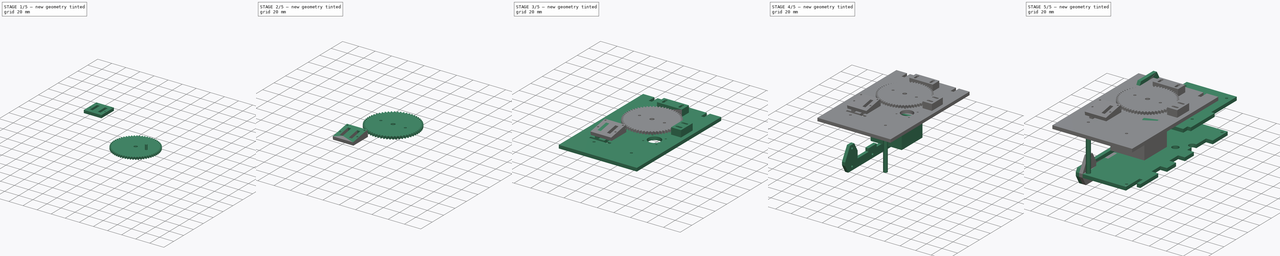
[diagram: build sequence overview — one tinted view per stage of 5, left to right]
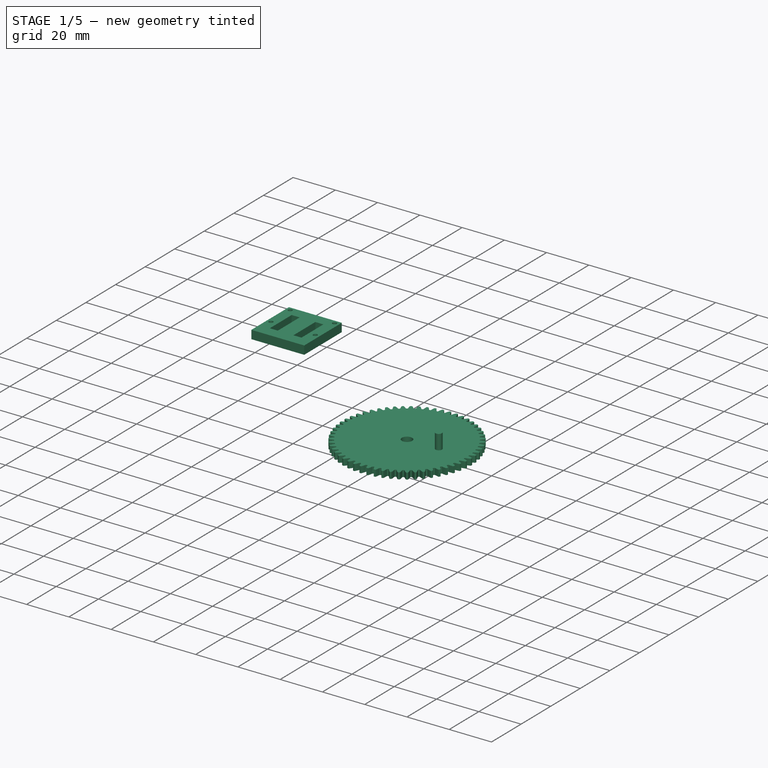
[diagram: stage 1 of 5 — iso view after this stage's code; geometry added in this stage tinted green]
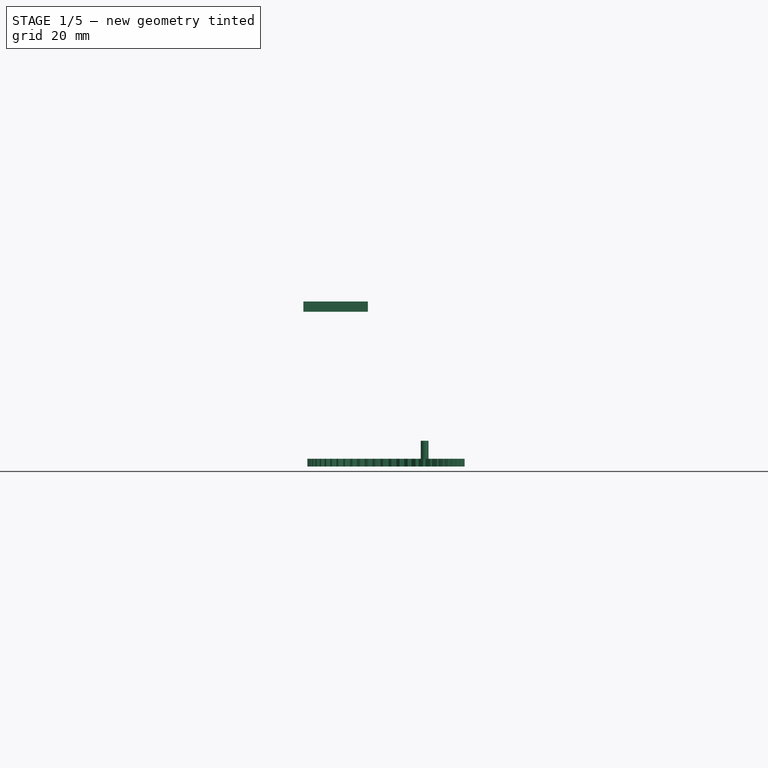
[diagram: stage 1 of 5 — front view after this stage's code; geometry added in this stage tinted green]
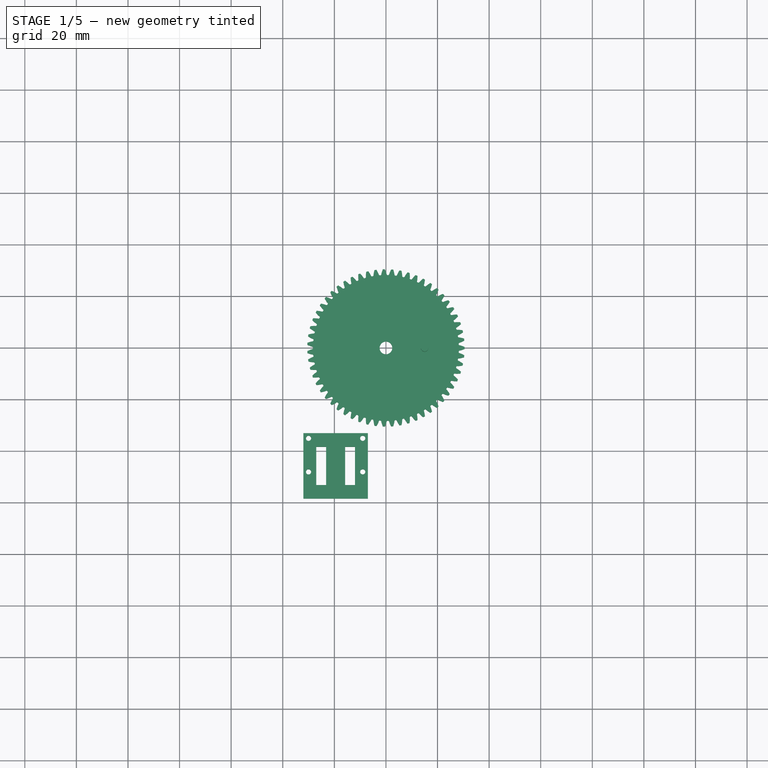
[diagram: stage 1 of 5 — top view after this stage's code; geometry added in this stage tinted green]
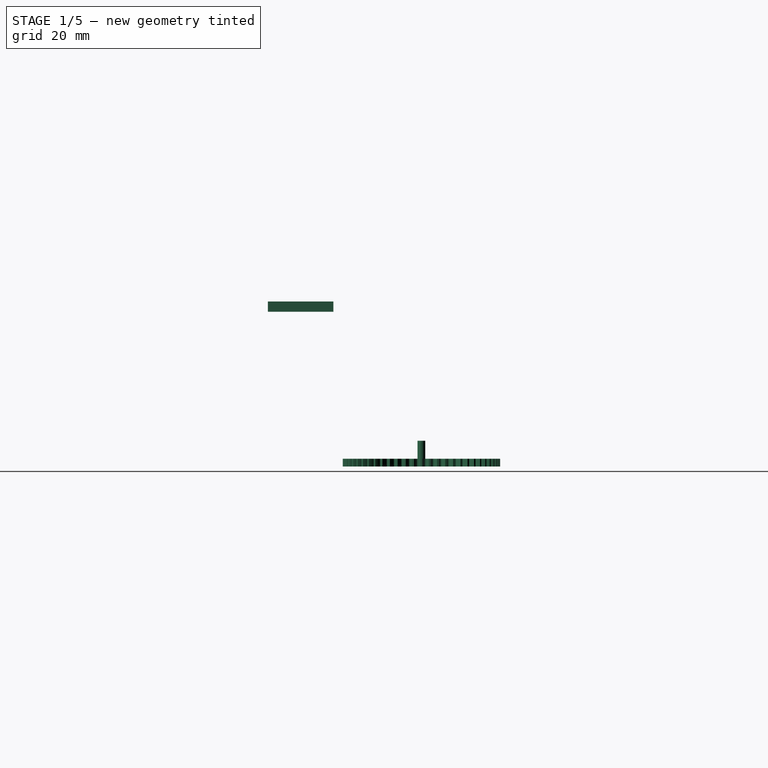
[diagram: stage 1 of 5 — right view after this stage's code; geometry added in this stage tinted green]
FCSTD DOCUMENT  (FreeCAD 0.14R3700 (Git))
Label: mft2014
License: CC-BY 3.0
LicenseURL: http://creativecommons.org/licenses/by/3.0/
objects: Drawing::FeatureViewPart×29, Sketcher::SketchObject×13, Part::Extrusion×12, Part::Mirroring×5, Part::Cylinder×4, Part::Cut×3, App::DocumentObjectGroup×2, Drawing::FeaturePage×2, Part::Box×2, PartDesign::Pocket×2, Part::Part2DObjectPython×1
note: 44 computed .brp shape members not serialized (recipe doc carries the construction recipe); baked Part::Feature solids carry a one-line shape summary decoded from their .brp

FEATURE [Part::Part2DObjectPython] InvoluteGear  # Draft 2D object (typed FeaturePython)
  Modules = 1
  NumberOfCurves = 0
  NumberOfTeeth = 59
  PressureAngle = 20
FEATURE [Part::Extrusion] Extrude017
  Base = -> InvoluteGear
  Dir = (0,0,3)
  Solid = true
FEATURE [Part::Cylinder] Cylinder
  Angle = 360
  Height = 10
  Radius = 2.45
FEATURE [Part::Cylinder] Cylinder002  label="Cylinder001"
  Angle = 360
  Height = 10
  Placement = pos=(15,0,0) rot=(0,0,1;0rad)
  Radius = 1.5
FEATURE [Part::Cut] Cut
  Base = -> Extrude017
  Tool = -> Cylinder
FEATURE [Drawing::FeatureViewPart] Ortho032  label="Ortho_0_032"
  Direction = (-1,0,0)
  HiddenWidth = 0.15
  LineWidth = 0.01
  Rotation = 90
  ShowHiddenLines = false
  ShowSmoothLines = false
  Source = -> Part__Mirroring005
  Tolerance = 0.05
  ViewResult = <g id="Ortho_0_032"\n   transform="rotate(90,168,215) translate(168,215) scale(1,1)"\n  >\n<g   stroke="rgb(0, 0, 0)"\n   stroke-width="0.01"\n   stroke-linecap="butt"\n   stroke-linejoin="miter"\n   fill="none"\n   transform="scale(1,-1)"\n  >\n<path id= "1" d=" M -20 63.7624 L -20 56.2376 " />\n<path id= "2" d=" M -4 73 L -20 63.7624 " />\n<path id= "3" d=" M -4 73 L 5.77316e-015 73 " />\n<path id= "4" d=" M 6.55032e-015 73 L 10 67.2265 " />\n<path id= "5" d=" M 10 67.2265 L 10 -53.0607 " />\n<path id= "6" d=" M -4 -61.1436 L 10 -53.0607 " />\n<path id= "7" d=" M -4 -61.1436 L -4 -30 " />\n<path id= "8" d=" M -4 -30 L 6.66134e-015 -30 " />\n<path id= "9" d=" M 6.55032e-015 -15 L 6.55032e-015 -30 " />\n<path id= "10" d=" M 6.55032e-015 -15 L -4 -15 " />\n<path id= "11" d=" M -4 -15 L -4 3.55271e-015 " />\n<path id= "12" d=" M -4 5.21805e-015 L 6.66134e-015 6.55032e-015 " />\n<path id= "13" d=" M 6.55032e-015 15 L 6.55032e-015 5.32907e-015 " />\n<path id= "14" d=" M 6.55032e-015 15 L -4 15 " />\n<path id= "15" d=" M -4 15 L -4 30 " />\n<path id= "16" d=" M -4 30 L 6.66134e-015 30 " />\n<path id= "17" d=" M 6.55032e-015 50 L 6.55032e-015 30 " />\n<path id= "18" d=" M -9.19615 50 L 5.32907e-015 50 " />\n<path id= "19" d=" M -20 56.2376 L -9.19615 50 " />\n<circle cx ="-16" cy ="60" r ="1.6" /><circle cx ="5" cy ="-37.5" r ="1.6" /><circle cx ="5" cy ="22.5" r ="1.6" /><circle cx ="5" cy ="-7.5" r ="1.6" /><circle cx ="5" cy ="60" r ="1.5" /></g>\n</g>
  X = 168
  Y = 215
FEATURE [Drawing::FeatureViewPart] Ortho034  label="Ortho_0_034"
  Direction = (1,0,0)
  HiddenWidth = 0.15
  LineWidth = 0.01
  Rotation = 90
  ShowHiddenLines = false
  ShowSmoothLines = false
  Source = -> Extrude011
  Tolerance = 0.05
  ViewResult = <g id="Ortho_0_034"\n   transform="rotate(90,136,169) translate(136,169) scale(1,1)"\n  >\n<g   stroke="rgb(0, 0, 0)"\n   stroke-width="0.01"\n   stroke-linecap="butt"\n   stroke-linejoin="miter"\n   fill="none"\n   transform="scale(1,-1)"\n  >\n<path id= "1" d=" M 20 63.7624 L 20 56.2376 " />\n<path id= "2" d=" M 4 73 L 20 63.7624 " />\n<path id= "3" d=" M 4 73 L 7.99361e-015 73 " />\n<path id= "4" d=" M 8.10463e-015 73 L -10 67.2265 " />\n<path id= "5" d=" M -10 67.2265 L -10 -53.0607 " />\n<path id= "6" d=" M 4 -61.1436 L -10 -53.0607 " />\n<path id= "7" d=" M 4 -61.1436 L 4 -30 " />\n<path id= "8" d=" M 4 -30 L -3.55271e-015 -30 " />\n<path id= "9" d=" M -1.66533e-015 -15 L -3.33067e-015 -30 " />\n<path id= "10" d=" M -1.66533e-015 -15 L 4 -15 " />\n<path id= "11" d=" M 4 -15 L 4 0 " />\n<path id= "12" d=" M 4 -8.88178e-016 L 0 0 " />\n<path id= "13" d=" M 1.66533e-015 15 L 0 0 " />\n<path id= "14" d=" M 1.66533e-015 15 L 4 15 " />\n<path id= "15" d=" M 4 15 L 4 30 " />\n<path id= "16" d=" M 4 30 L 3.55271e-015 30 " />\n<path id= "17" d=" M 5.55112e-015 50 L 3.33067e-015 30 " />\n<path id= "18" d=" M 9.19615 50 L 5.32907e-015 50 " />\n<path id= "19" d=" M 20 56.2376 L 9.19615 50 " />\n<circle cx ="16" cy ="60" r ="1.6" /><circle cx ="-5" cy ="-37.5" r ="1.6" /><circle cx ="-5" cy ="22.5" r ="1.6" /><circle cx ="-5" cy ="-7.5" r ="1.6" /><circle cx ="-5" cy ="60" r ="1.5" /></g>\n</g>
  X = 136
  Y = 169
FEATURE [Drawing::FeatureViewPart] Ortho035  label="Ortho_0_035"
  Direction = (1,0,0)
  HiddenWidth = 0.15
  LineWidth = 0.01
  Rotation = 90
  ShowHiddenLines = false
  ShowSmoothLines = false
  Source = -> Part__Mirroring
  Tolerance = 0.05
  ViewResult = <blob: 3021 chars omitted>
  X = 86
  Y = 184
FEATURE [Drawing::FeatureViewPart] Ortho042  label="Ortho_0_042"
  Direction = (-1,0,0)
  HiddenWidth = 0.15
  LineWidth = 0.01
  Rotation = 90
  ShowHiddenLines = false
  ShowSmoothLines = false
  Source = -> Extrude007
  Tolerance = 0.05
  ViewResult = <blob: 2628 chars omitted>
  X = 135
  Y = 274
FEATURE [Drawing::FeatureViewPart] Ortho043  label="Ortho_0_043"
  Direction = (0,0,1)
  HiddenWidth = 0.15
  LineWidth = 0.01
  Rotation = 0
  ShowHiddenLines = false
  ShowSmoothLines = false
  Source = -> Extrude010
  Tolerance = 0.05
  ViewResult = <g id="Ortho_0_043"\n   transform="rotate(0,215,123) translate(215,123) scale(1,1)"\n  >\n<g   stroke="rgb(0, 0, 0)"\n   stroke-width="0.01"\n   stroke-linecap="butt"\n   stroke-linejoin="miter"\n   fill="none"\n   transform="scale(1,-1)"\n  >\n<path id= "1" d=" M -29.5 25 L -29.5 18 " />\n<path id= "2" d=" M -29.5 18 L 29.5 18 " />\n<path id= "3" d=" M 29.5 25 L 29.5 18 " />\n<path id= "4" d=" M 29.5 25 L 33.5 25 " />\n<path id= "5" d=" M 33.5 65 L 33.5 25 " />\n<path id= "6" d=" M 29.5 65 L 33.5 65 " />\n<path id= "7" d=" M 29.5 108 L 29.5 65 " />\n<path id= "8" d=" M 29.5 108 L -29.5 108 " />\n<path id= "9" d=" M -29.5 108 L -29.5 65 " />\n<path id= "10" d=" M -33.5 65 L -29.5 65 " />\n<path id= "11" d=" M -33.5 65 L -33.5 25 " />\n<path id= "12" d=" M -29.5 25 L -33.5 25 " />\n<circle cx ="15.4" cy ="28.6" r ="1.5" /><circle cx ="-25.5" cy ="41.5" r ="1.5" /><circle cx ="23.5" cy ="41.5" r ="1.5" /><circle cx ="23.5" cy ="99.5" r ="1.5" /><circle cx ="-10" cy ="83.2" r ="1.5" /><circle cx ="-25.5" cy ="99.5" r ="1.5" /></g>\n</g>
  X = 215
  Y = 123
FEATURE [Drawing::FeatureViewPart] Ortho049  label="Ortho_0_049"
  Direction = (0,0,1)
  HiddenWidth = 0.15
  LineWidth = 0.01
  Rotation = 0
  ShowHiddenLines = false
  ShowSmoothLines = false
  Source = -> Extrude005
  Tolerance = 0.05
  ViewResult = <blob: 2600 chars omitted>
  X = 45
  Y = 100
FEATURE [Drawing::FeatureViewPart] Ortho050  label="Ortho_0_050"
  Direction = (0,0,1)
  HiddenWidth = 0.15
  LineWidth = 0.01
  Rotation = 0
  ShowHiddenLines = false
  ShowSmoothLines = false
  Source = -> Extrude015
  Tolerance = 0.05
  ViewResult = <blob: 2206 chars omitted>
  X = 130
  Y = 64
FEATURE [Drawing::FeatureViewPart] Ortho051  label="Ortho_0_051"
  Direction = (1,0,0)
  HiddenWidth = 0.15
  LineWidth = 0.01
  Rotation = -90
  ShowHiddenLines = false
  ShowSmoothLines = false
  Source = -> Part__Mirroring006
  Tolerance = 0.05
  ViewResult = <g id="Ortho_0_051"\n   transform="rotate(-90,240,175.72) translate(240,175.72) scale(1,1)"\n  >\n<g   stroke="rgb(0, 0, 0)"\n   stroke-width="0.01"\n   stroke-linecap="butt"\n   stroke-linejoin="miter"\n   fill="none"\n   transform="scale(1,-1)"\n  >\n<path id= "1" d=" M 54 59.5 L 60 59.5 " />\n<path id= "2" d=" M 60 59.5 L 60.9017 54.3861 " />\n<path id= "3" d=" M 60.9017 54.3861 L 64.841 55.0807 " />\n<path id= "4" d=" M 64.841 55.0807 L 67.4457 40.3085 " />\n<path id= "5" d=" M 67.4457 40.3085 L 63.5064 39.6139 " />\n<path id= "6" d=" M 63.5064 39.6139 L 64.4082 34.5 " />\n<path id= "7" d=" M 64.4082 34.5 L 54 34.5 " />\n<path id= "8" d=" M 54 39.5 L 54 34.5 " />\n<path id= "9" d=" M 58 39.5 L 54 39.5 " />\n<path id= "10" d=" M 58 54.5 L 58 39.5 " />\n<path id= "11" d=" M 54 54.5 L 58 54.5 " />\n<path id= "12" d=" M 54 59.5 L 54 54.5 " />\n</g>\n</g>
  X = 240
  Y = 175.72
FEATURE [Drawing::FeatureViewPart] Ortho052  label="Ortho_0_052"
  Direction = (1,0,0)
  HiddenWidth = 0.15
  LineWidth = 0.01
  Rotation = -90
  ShowHiddenLines = false
  ShowSmoothLines = false
  Source = -> Extrude016
  Tolerance = 0.05
  ViewResult = <g id="Ortho_0_052"\n   transform="rotate(-90,270,175.72) translate(270,175.72) scale(1,1)"\n  >\n<g   stroke="rgb(0, 0, 0)"\n   stroke-width="0.01"\n   stroke-linecap="butt"\n   stroke-linejoin="miter"\n   fill="none"\n   transform="scale(1,-1)"\n  >\n<path id= "1" d=" M 54 59.5 L 60 59.5 " />\n<path id= "2" d=" M 60 59.5 L 60.9017 54.3861 " />\n<path id= "3" d=" M 60.9017 54.3861 L 64.841 55.0807 " />\n<path id= "4" d=" M 64.841 55.0807 L 67.4457 40.3085 " />\n<path id= "5" d=" M 67.4457 40.3085 L 63.5064 39.6139 " />\n<path id= "6" d=" M 63.5064 39.6139 L 64.4082 34.5 " />\n<path id= "7" d=" M 64.4082 34.5 L 54 34.5 " />\n<path id= "8" d=" M 54 39.5 L 54 34.5 " />\n<path id= "9" d=" M 58 39.5 L 54 39.5 " />\n<path id= "10" d=" M 58 54.5 L 58 39.5 " />\n<path id= "11" d=" M 54 54.5 L 58 54.5 " />\n<path id= "12" d=" M 54 59.5 L 54 54.5 " />\n</g>\n</g>
  X = 270
  Y = 175.72
FEATURE [Part::Box] Box001  label="Cube001"
  Height = 4
  Length = 25
  Placement = pos=(-32,-59.5,60) rot=(0,0,1;0rad)
  Width = 25.3857
FEATURE [Sketcher::SketchObject] Sketch014  label="camera-base001"
  Placement = pos=(-32,-59.5,64) rot=(0,0,1;0rad)
  Support = -> Box001 [Face6]
  sketch-geometry (18):
    g0: LineSegment StartX=5 StartY=20.0928 StartZ=0 EndX=8.8 EndY=20.0928 EndZ=0
    g1: LineSegment StartX=8.8 StartY=20.0928 StartZ=0 EndX=8.8 EndY=5.29283 EndZ=0
    g2: LineSegment StartX=8.8 StartY=5.29283 StartZ=0 EndX=5 EndY=5.29283 EndZ=0
    g3: LineSegment StartX=5 StartY=5.29283 StartZ=0 EndX=5 EndY=20.0928 EndZ=0
    g4: LineSegment StartX=16.2 StartY=20.0928 StartZ=0 EndX=20 EndY=20.0928 EndZ=0
    g5: LineSegment StartX=20 StartY=20.0928 StartZ=0 EndX=20 EndY=5.29283 EndZ=0
    g6: LineSegment StartX=20 StartY=5.29283 StartZ=0 EndX=16.2 EndY=5.29283 EndZ=0
    g7: LineSegment StartX=16.2 StartY=5.29283 StartZ=0 EndX=16.2 EndY=20.0928 EndZ=0
    g8: Circle CenterX=2 CenterY=23.3857 CenterZ=0 NormalX=0 NormalY=0 NormalZ=1 Radius=1
    g9: Circle CenterX=23 CenterY=23.3857 CenterZ=0 NormalX=0 NormalY=0 NormalZ=1 Radius=1
    g10: LineSegment [constr] StartX=2 StartY=23.3857 StartZ=0 EndX=23 EndY=23.3857 EndZ=0
    g11: Circle CenterX=23 CenterY=10.3857 CenterZ=0 NormalX=0 NormalY=0 NormalZ=1 Radius=1
    g12: LineSegment [constr] StartX=23 StartY=23.3857 StartZ=0 EndX=23 EndY=10.3857 EndZ=0
    g13: LineSegment [constr] StartX=0 StartY=25.3857 StartZ=0 EndX=30 EndY=25.3857 EndZ=0
    g14: LineSegment [constr] StartX=2 StartY=10.3857 StartZ=0 EndX=23 EndY=10.3857 EndZ=0
    g15: LineSegment [constr] StartX=2 StartY=23.3857 StartZ=0 EndX=2 EndY=10.1982 EndZ=0
    g16: LineSegment [constr] StartX=8.8 StartY=20.0928 StartZ=0 EndX=16.2 EndY=20.0928 EndZ=0
    g17: Circle CenterX=2 CenterY=10.3857 CenterZ=0 NormalX=0 NormalY=0 NormalZ=1 Radius=1
  constraints (49):
    c: Coincident(g0,g1)
    c: Coincident(g1,g2)
    c: Coincident(g2,g3)
    c: Coincident(g3,g0)
    c: Horizontal(g0)
    c: Horizontal(g2)
    c: Vertical(g1)
    c: Vertical(g3)
    c: Distance(g0) = 3.8
    c: DistanceX(g-2,g2) = 5
    c: Distance(g-1,g2) = 5.29283
    c: Distance(g3) = 14.8
    c: Coincident(g4,g5)
    c: Coincident(g5,g6)
    c: Coincident(g6,g7)
    c: Coincident(g7,g4)
    c: Horizontal(g4)
    c: Horizontal(g6)
    c: Vertical(g5)
    c: Vertical(g7)
    c: Coincident(g10,g8)
    c: Coincident(g10,g9)
    c: Horizontal(g10)
    c: Distance(g10) = 21
    c: Radius(g8) = 1
    c: Radius(g9) = 1
    c: Coincident(g12,g9)
    c: Coincident(g12,g11)
    c: Vertical(g12)
    c: Distance(g12) = 13
    c: Radius(g11) = 1
    c: Horizontal(g13)
    c: Distance(g-1,g13) = 25.3857
    c: Distance(g8,g13) = 2
    c: PointOnObject(g13,g-2)
    c: Distance(g13) = 30
    c: Coincident(g14,g11)
    c: Horizontal(g14)
    c: Coincident(g15,g8)
    c: Vertical(g15)
    c: DistanceX(g-2,g8) = 2
    c: Equal(g0,g4)
    c: Equal(g7,g1)
    c: Horizontal(g16)
    c: Coincident(g16,g4)
    c: Coincident(g16,g0)
    c: Distance(g16) = 7.4
    c: Coincident(g14,g17)
    c: Radius(g17) = 1
FEATURE [PartDesign::Pocket] Pocket001
  Length = 5
  Placement = pos=(-32,-59.5,60) rot=(0,0,1;0rad)
  Sketch = -> Sketch014
  Type = 0
FEATURE [Drawing::FeatureViewPart] Ortho072  label="Ortho_0_072"
  Direction = (0,0,1)
  HiddenWidth = 0.15
  LineWidth = 0.01
  Rotation = 0
  ShowHiddenLines = false
  ShowSmoothLines = false
  Source = -> Pocket001
  Tolerance = 0.05
  ViewResult = <g id="Ortho_0_072"\n   transform="rotate(0,220,90) translate(220,90) scale(1,1)"\n  >\n<g   stroke="rgb(0, 0, 0)"\n   stroke-width="0.01"\n   stroke-linecap="butt"\n   stroke-linejoin="miter"\n   fill="none"\n   transform="scale(1,-1)"\n  >\n<path id= "1" d=" M -32 -59.5 L -32 -34.1143 " />\n<path id= "2" d=" M -32 -59.5 L -7 -59.5 " />\n<circle cx ="-30" cy ="-36.1143" r ="1" /><circle cx ="-30" cy ="-49.1143" r ="1" /><circle cx ="-9" cy ="-36.1143" r ="1" /><circle cx ="-9" cy ="-49.1143" r ="1" /><path id= "7" d=" M -32 -34.1143 L -7 -34.1143 " />\n<path id= "8" d=" M -7 -59.5 L -7 -34.1143 " />\n<path id= "9" d=" M -15.8 -54.2072 L -15.8 -39.4072 " />\n<path id= "10" d=" M -12 -54.2072 L -15.8 -54.2072 " />\n<path id= "11" d=" M -12 -39.4072 L -12 -54.2072 " />\n<path id= "12" d=" M -15.8 -39.4072 L -12 -39.4072 " />\n<path id= "13" d=" M -27 -54.2072 L -27 -39.4072 " />\n<path id= "14" d=" M -23.2 -54.2072 L -27 -54.2072 " />\n<path id= "15" d=" M -23.2 -39.4072 L -23.2 -54.2072 " />\n<path id= "16" d=" M -27 -39.4072 L -23.2 -39.4072 " />\n</g>\n</g>
  X = 220
  Y = 90
FEATURE [Drawing::FeaturePage] Page001
  EditableTexts = TOKITA Hiroshi | 2014/11/14 | Kokusai <owner> Kyoukai | 2014/11/23 | 1.0 | N/A | N/A | N/A | AR-Like Control TANK | Cut Pattern 300x300
  Group = -> [Ortho049,Ortho043,Ortho042,Ortho035,Ortho034,Ortho032,Ortho050,Ortho051,Ortho052,Ortho072]
  Template = C:/Program Files (x86)/FreeCAD 0.14/data/Mod/Drawing/Templates/A3_Landscape.svg
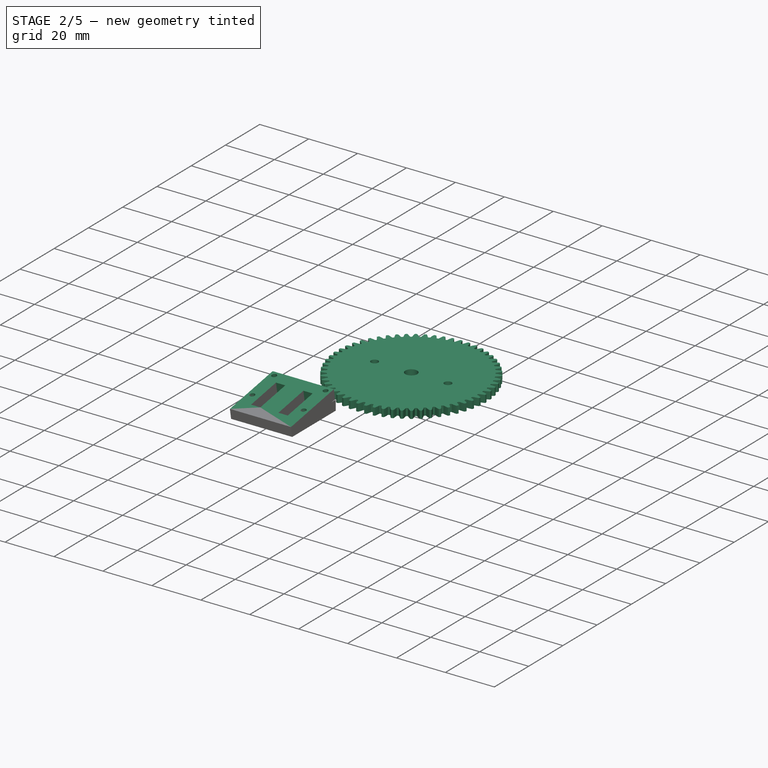
[diagram: stage 2 of 5 — iso view after this stage's code; geometry added in this stage tinted green]
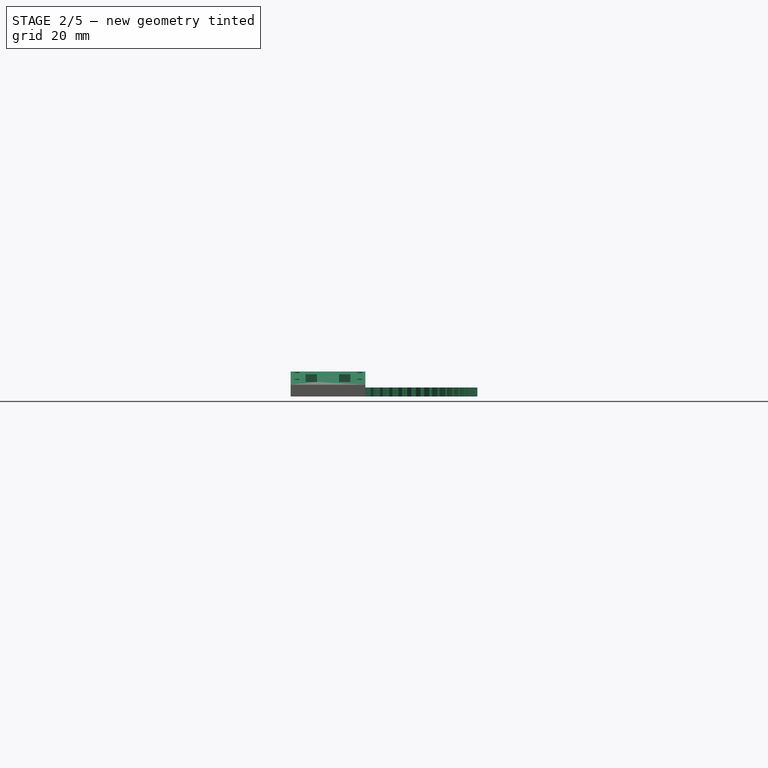
[diagram: stage 2 of 5 — front view after this stage's code; geometry added in this stage tinted green]
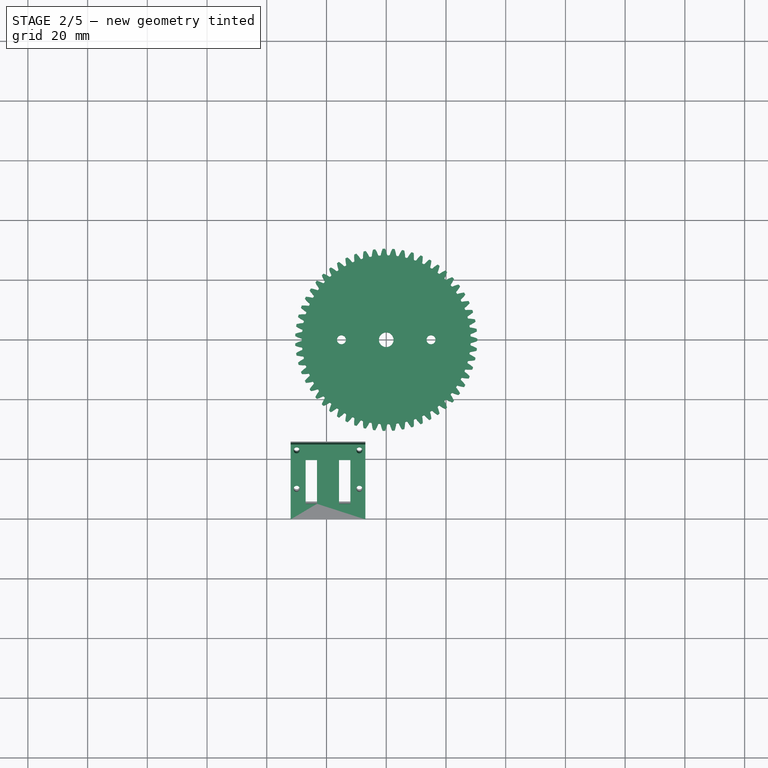
[diagram: stage 2 of 5 — top view after this stage's code; geometry added in this stage tinted green]
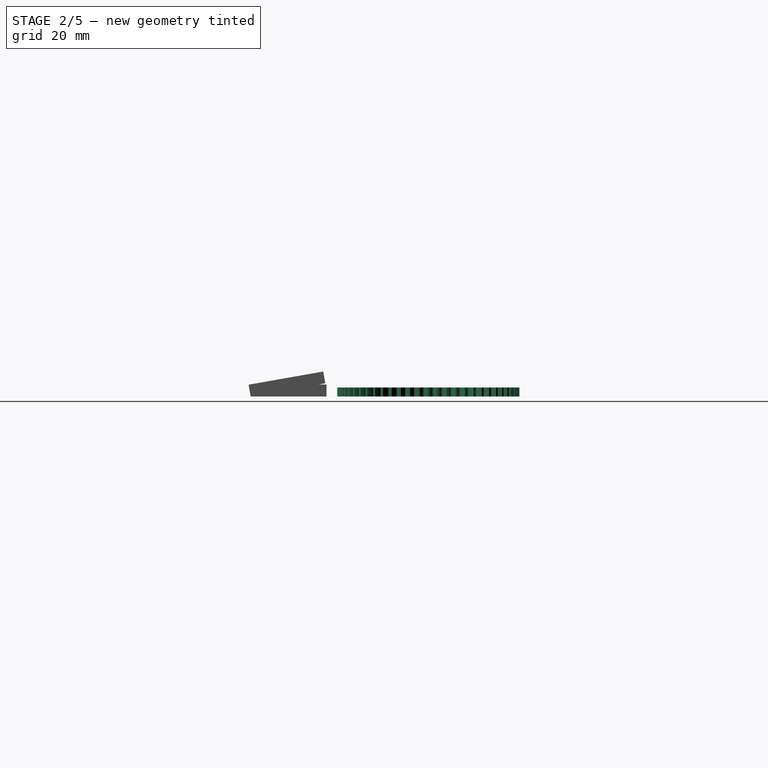
[diagram: stage 2 of 5 — right view after this stage's code; geometry added in this stage tinted green]
FEATURE [Part::Box] Box  label="Cube"
  Height = 4
  Length = 25
  Placement = pos=(-32,-59.5,60) rot=(1,0,0;0.174533rad)
  Width = 25.3857
FEATURE [Sketcher::SketchObject] Sketch013  label="camera-base"
  Placement = pos=(-32,-60.1946,63.9392) rot=(1,0,0;0.174533rad)
  Support = -> Box [Face6]
  sketch-geometry (18):
    g0: LineSegment StartX=5 StartY=20.0928 StartZ=0 EndX=8.8 EndY=20.0928 EndZ=0
    g1: LineSegment StartX=8.8 StartY=20.0928 StartZ=0 EndX=8.8 EndY=5.29283 EndZ=0
    g2: LineSegment StartX=8.8 StartY=5.29283 StartZ=0 EndX=5 EndY=5.29283 EndZ=0
    g3: LineSegment StartX=5 StartY=5.29283 StartZ=0 EndX=5 EndY=20.0928 EndZ=0
    g4: LineSegment StartX=16.2 StartY=20.0928 StartZ=0 EndX=20 EndY=20.0928 EndZ=0
    g5: LineSegment StartX=20 StartY=20.0928 StartZ=0 EndX=20 EndY=5.29283 EndZ=0
    g6: LineSegment StartX=20 StartY=5.29283 StartZ=0 EndX=16.2 EndY=5.29283 EndZ=0
    g7: LineSegment StartX=16.2 StartY=5.29283 StartZ=0 EndX=16.2 EndY=20.0928 EndZ=0
    g8: Circle CenterX=2 CenterY=23.3857 CenterZ=0 NormalX=0 NormalY=0 NormalZ=1 Radius=1
    g9: Circle CenterX=23 CenterY=23.3857 CenterZ=0 NormalX=0 NormalY=0 NormalZ=1 Radius=1
    g10: LineSegment [constr] StartX=2 StartY=23.3857 StartZ=0 EndX=23 EndY=23.3857 EndZ=0
    g11: Circle CenterX=23 CenterY=10.3857 CenterZ=0 NormalX=0 NormalY=0 NormalZ=1 Radius=1
    g12: LineSegment [constr] StartX=23 StartY=23.3857 StartZ=0 EndX=23 EndY=10.3857 EndZ=0
    g13: LineSegment [constr] StartX=0 StartY=25.3857 StartZ=0 EndX=30 EndY=25.3857 EndZ=0
    g14: LineSegment [constr] StartX=2 StartY=10.3857 StartZ=0 EndX=23 EndY=10.3857 EndZ=0
    g15: LineSegment [constr] StartX=2 StartY=23.3857 StartZ=0 EndX=2 EndY=10.1982 EndZ=0
    g16: LineSegment [constr] StartX=8.8 StartY=20.0928 StartZ=0 EndX=16.2 EndY=20.0928 EndZ=0
    g17: Circle CenterX=2 CenterY=10.3857 CenterZ=0 NormalX=0 NormalY=0 NormalZ=1 Radius=1
  constraints (49):
    c: Coincident(g0,g1)
    c: Coincident(g1,g2)
    c: Coincident(g2,g3)
    c: Coincident(g3,g0)
    c: Horizontal(g0)
    c: Horizontal(g2)
    c: Vertical(g1)
    c: Vertical(g3)
    c: Distance(g0) = 3.8
    c: DistanceX(g-2,g2) = 5
    c: Distance(g-1,g2) = 5.29283
    c: Distance(g3) = 14.8
    c: Coincident(g4,g5)
    c: Coincident(g5,g6)
    c: Coincident(g6,g7)
    c: Coincident(g7,g4)
    c: Horizontal(g4)
    c: Horizontal(g6)
    c: Vertical(g5)
    c: Vertical(g7)
    c: Coincident(g10,g8)
    c: Coincident(g10,g9)
    c: Horizontal(g10)
    c: Distance(g10) = 21
    c: Radius(g8) = 1
    c: Radius(g9) = 1
    c: Coincident(g12,g9)
    c: Coincident(g12,g11)
    c: Vertical(g12)
    c: Distance(g12) = 13
    c: Radius(g11) = 1
    c: Horizontal(g13)
    c: Distance(g-1,g13) = 25.3857
    c: Distance(g8,g13) = 2
    c: PointOnObject(g13,g-2)
    c: Distance(g13) = 30
    c: Coincident(g14,g11)
    c: Horizontal(g14)
    c: Coincident(g15,g8)
    c: Vertical(g15)
    c: DistanceX(g-2,g8) = 2
    c: Equal(g0,g4)
    c: Equal(g7,g1)
    c: Horizontal(g16)
    c: Coincident(g16,g4)
    c: Coincident(g16,g0)
    c: Distance(g16) = 7.4
    c: Coincident(g14,g17)
    c: Radius(g17) = 1
FEATURE [PartDesign::Pocket] Pocket
  Length = 5
  Placement = pos=(-32,-59.5,60) rot=(1,0,0;0.174533rad)
  Sketch = -> Sketch013
  Type = 0
FEATURE [Part::Cylinder] Cylinder003  label="Cylinder002"
  Angle = 360
  Height = 10
  Placement = pos=(-15,0,0) rot=(0,0,1;0rad)
  Radius = 1.5
FEATURE [Part::Cut] Cut001
  Base = -> Cut
  Tool = -> Cylinder002
FEATURE [Part::Cut] Cut002
  Base = -> Cut001
  Placement = pos=(0,0,60) rot=(0,0,1;0rad)
  Tool = -> Cylinder003
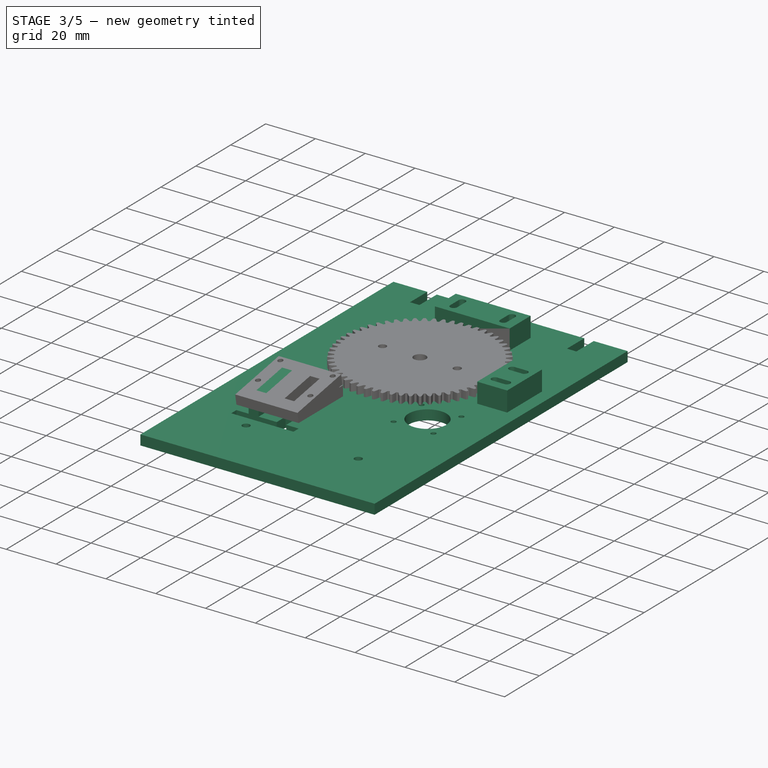
[diagram: stage 3 of 5 — iso view after this stage's code; geometry added in this stage tinted green]
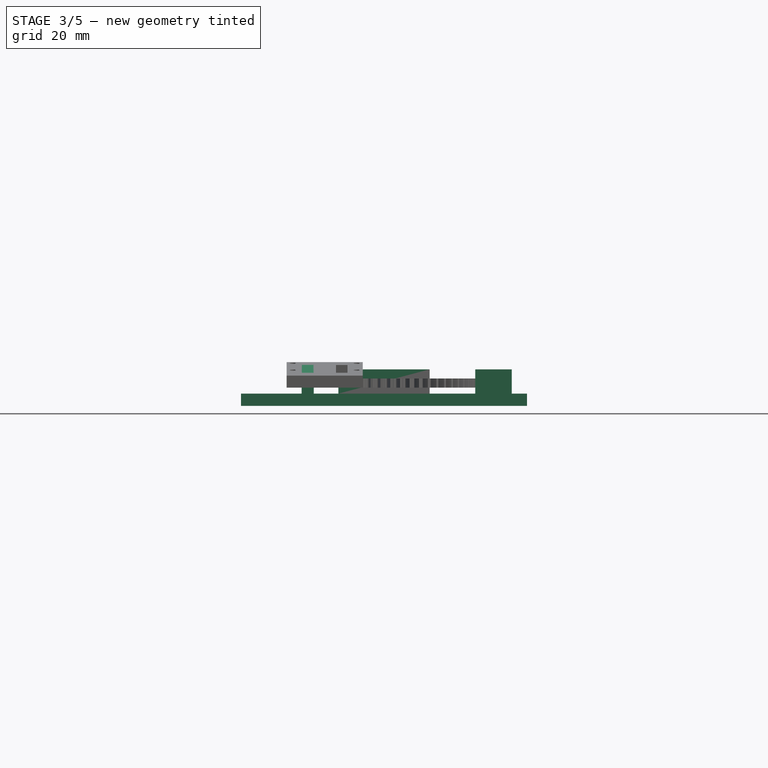
[diagram: stage 3 of 5 — front view after this stage's code; geometry added in this stage tinted green]
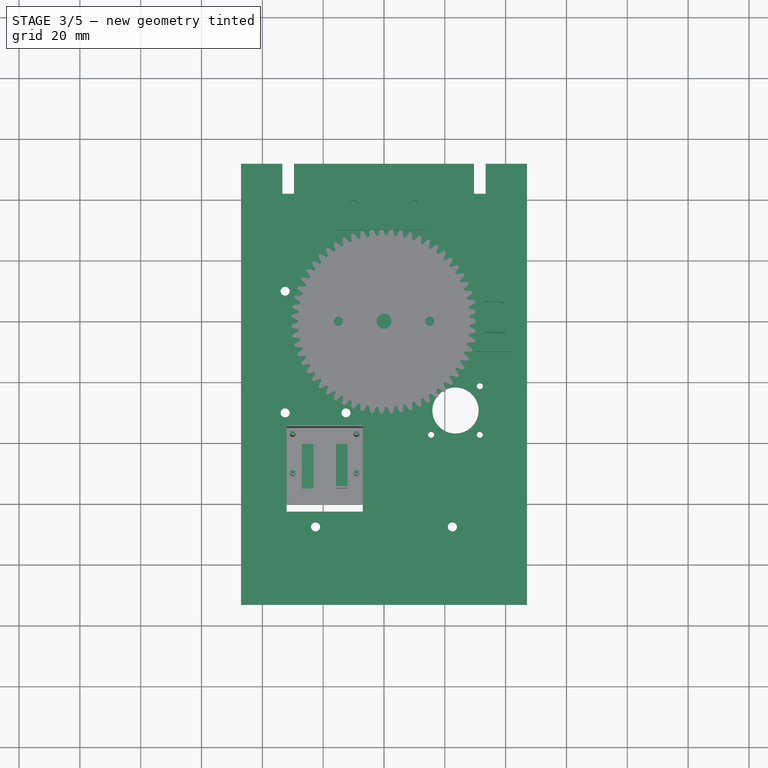
[diagram: stage 3 of 5 — top view after this stage's code; geometry added in this stage tinted green]
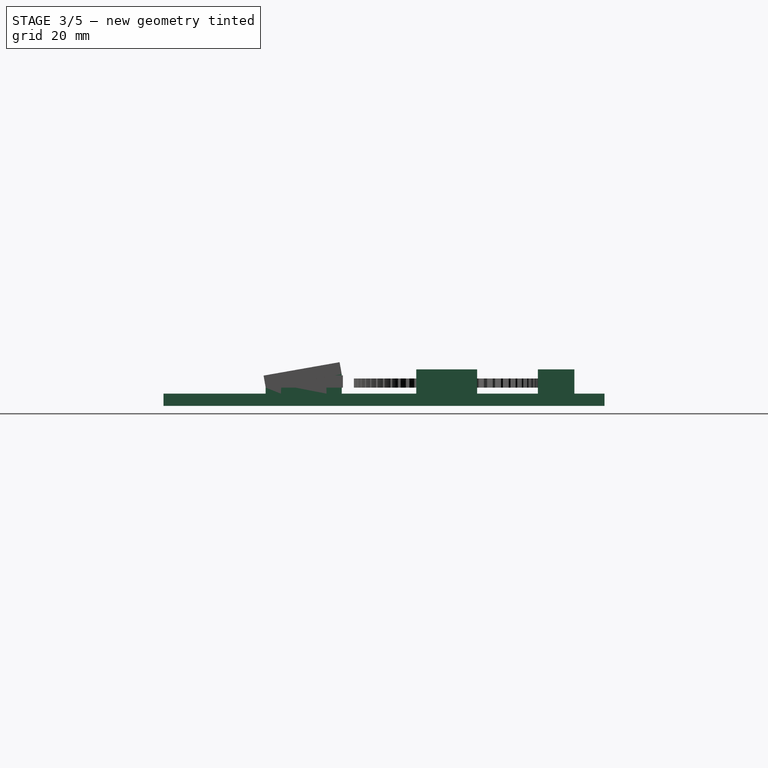
[diagram: stage 3 of 5 — right view after this stage's code; geometry added in this stage tinted green]
FEATURE [Sketcher::SketchObject] Sketch009  label="stopper_LR"
  Placement = pos=(0,0,58) rot=(0,0,1;0rad)
  sketch-geometry (12):
    g0: LineSegment StartX=-42 StartY=10 StartZ=0 EndX=-30 EndY=10 EndZ=0
    g1: LineSegment StartX=-30 StartY=10 StartZ=0 EndX=-30 EndY=-10 EndZ=0
    g2: LineSegment StartX=-30 StartY=-10 StartZ=0 EndX=-42 EndY=-10 EndZ=0
    g3: LineSegment StartX=-42 StartY=-10 StartZ=0 EndX=-42 EndY=10 EndZ=0
    g4: ArcOfCircle CenterX=-38.4 CenterY=5 CenterZ=0 NormalX=0 NormalY=0 NormalZ=1 Radius=1.4 StartAngle=1.5708 EndAngle=4.71239
    g5: ArcOfCircle CenterX=-33.6 CenterY=5 CenterZ=0 NormalX=0 NormalY=0 NormalZ=1 Radius=1.4 StartAngle=4.71239 EndAngle=7.85399
    g6: LineSegment StartX=-38.4 StartY=3.6 StartZ=0 EndX=-33.6 EndY=3.6 EndZ=0
    g7: LineSegment StartX=-38.4 StartY=6.4 StartZ=0 EndX=-33.6 EndY=6.4 EndZ=0
    g8: ArcOfCircle CenterX=-38.4 CenterY=-5 CenterZ=0 NormalX=0 NormalY=0 NormalZ=1 Radius=1.4 StartAngle=1.5708 EndAngle=4.71239
    g9: ArcOfCircle CenterX=-33.6 CenterY=-5 CenterZ=0 NormalX=0 NormalY=0 NormalZ=1 Radius=1.4 StartAngle=4.71239 EndAngle=7.85398
    g10: LineSegment StartX=-38.4 StartY=-6.4 StartZ=0 EndX=-33.6 EndY=-6.4 EndZ=0
    g11: LineSegment StartX=-38.4 StartY=-3.6 StartZ=0 EndX=-33.6 EndY=-3.6 EndZ=0
  constraints (38):
    c: Coincident(g0,g1)
    c: Coincident(g1,g2)
    c: Coincident(g2,g3)
    c: Coincident(g3,g0)
    c: Horizontal(g0)
    c: Horizontal(g2)
    c: Vertical(g1)
    c: Vertical(g3)
    c: Distance(g1) = 20
    c: Symmetric(g0,g1,g-1)
    c: Tangent(g4,g6)
    c: Tangent(g4,g7)
    c: Tangent(g5,g6)
    c: Tangent(g5,g7)
    c: Coincident(g4,g7)
    c: Coincident(g4,g6)
    c: Coincident(g6,g5)
    c: Coincident(g7,g5)
    c: Horizontal(g6)
    c: Equal(g4,g5)
    c: Distance(g0) = 12
    c: DistanceY(g5,g5) = 2.8
    c: DistanceY(g-1,g5) = 5
    c: DistanceX(g-1,g0) = -30
    c: Distance(g7) = 4.8
    c: DistanceX(g4,g0) = -3.6
    c: Tangent(g8,g10)
    c: Tangent(g8,g11)
    c: Tangent(g9,g10)
    c: Tangent(g9,g11)
    c: Coincident(g8,g11)
    c: Coincident(g8,g10)
    c: Coincident(g10,g9)
    c: Coincident(g11,g9)
    c: Horizontal(g10)
    c: Equal(g8,g9)
    c: Symmetric(g9,g5,g-1)
    c: Symmetric(g8,g4,g-1)
FEATURE [Part::Extrusion] Extrude013
  Base = -> Sketch009
  Dir = (0,0,8)
  Solid = true
FEATURE [Part::Mirroring] Part__Mirroring004  label="Extrude013 (Mirror #5)"
  Base = (0,0,0)
  Normal = (1,0,0)
  Source = -> Extrude013
FEATURE [Sketcher::SketchObject] Sketch010  label="stopper_TB"
  Placement = pos=(0,0,58) rot=(0,0,1;0rad)
  sketch-geometry (12):
    g0: LineSegment StartX=-15 StartY=42 StartZ=0 EndX=15 EndY=42 EndZ=0
    g1: LineSegment StartX=15 StartY=42 StartZ=0 EndX=15 EndY=30 EndZ=0
    g2: LineSegment StartX=15 StartY=30 StartZ=0 EndX=-15 EndY=30 EndZ=0
    g3: LineSegment StartX=-15 StartY=30 StartZ=0 EndX=-15 EndY=42 EndZ=0
    g4: ArcOfCircle CenterX=-10 CenterY=38.4 CenterZ=0 NormalX=0 NormalY=0 NormalZ=1 Radius=1.4 StartAngle=5.8483e-08 EndAngle=3.14159
    g5: ArcOfCircle CenterX=-10 CenterY=33.6 CenterZ=0 NormalX=0 NormalY=0 NormalZ=1 Radius=1.4 StartAngle=3.1416 EndAngle=6.28318
    g6: LineSegment StartX=-11.4 StartY=38.4 StartZ=0 EndX=-11.4 EndY=33.6 EndZ=0
    g7: LineSegment StartX=-8.6 StartY=38.4 StartZ=0 EndX=-8.6 EndY=33.6 EndZ=0
    g8: ArcOfCircle CenterX=10 CenterY=38.4 CenterZ=0 NormalX=0 NormalY=0 NormalZ=1 Radius=1.4 StartAngle=9.126e-08 EndAngle=3.14159
    g9: ArcOfCircle CenterX=10 CenterY=33.6 CenterZ=0 NormalX=0 NormalY=0 NormalZ=1 Radius=1.4 StartAngle=3.14159 EndAngle=6.28318
    g10: LineSegment StartX=8.6 StartY=38.4 StartZ=0 EndX=8.6 EndY=33.6 EndZ=0
    g11: LineSegment StartX=11.4 StartY=38.4 StartZ=0 EndX=11.4 EndY=33.6 EndZ=0
  constraints (38):
    c: Coincident(g0,g1)
    c: Coincident(g1,g2)
    c: Coincident(g2,g3)
    c: Coincident(g3,g0)
    c: Horizontal(g0)
    c: Horizontal(g2)
    c: Vertical(g1)
    c: Vertical(g3)
    c: Symmetric(g0,g0,g-2)
    c: Tangent(g4,g6)
    c: Tangent(g4,g7)
    c: Tangent(g5,g6)
    c: Tangent(g5,g7)
    c: Coincident(g4,g7)
    c: Coincident(g4,g6)
    c: Coincident(g6,g5)
    c: Coincident(g7,g5)
    c: Vertical(g6)
    c: Equal(g4,g5)
    c: DistanceX(g4,g4) = 2.8
    c: Distance(g6) = 4.8
    c: Tangent(g8,g10)
    c: Tangent(g8,g11)
    c: Tangent(g9,g10)
    c: Tangent(g9,g11)
    c: Coincident(g8,g11)
    c: Coincident(g8,g10)
    c: Coincident(g10,g9)
    c: Coincident(g11,g9)
    c: Vertical(g10)
    c: Equal(g8,g9)
    c: Symmetric(g4,g8,g-2)
    c: Symmetric(g5,g9,g-2)
    c: DistanceY(g-1,g2) = 30
    c: Distance(g3) = 12
    c: Distance(g5,g2) = 3.6
    c: Distance(g0) = 30
    c: Distance(g5,g9) = 20
FEATURE [Part::Extrusion] Extrude014
  Base = -> Sketch010
  Dir = (0,0,8)
  Solid = true
FEATURE [Drawing::FeatureViewPart] Ortho  label="Ortho_0_0"
  Direction = (0,0,1)
  HiddenWidth = 0.15
  LineWidth = 0.01
  Rotation = 0
  ShowHiddenLines = false
  ShowSmoothLines = false
  Source = -> Extrude005
  Tolerance = 0.05
  ViewResult = <blob: 2598 chars omitted>
  X = 45
  Y = 100
FEATURE [Drawing::FeatureViewPart] Ortho001  label="Ortho_0_001"
  Direction = (0,0,1)
  HiddenWidth = 0.15
  LineWidth = 0.01
  Rotation = 0
  ShowHiddenLines = false
  ShowSmoothLines = false
  Source = -> Extrude009
  Tolerance = 0.05
  ViewResult = <g id="Ortho_0_001"\n   transform="rotate(0,127,65) translate(127,65) scale(1,1)"\n  >\n<g   stroke="rgb(0, 0, 0)"\n   stroke-width="0.01"\n   stroke-linecap="butt"\n   stroke-linejoin="miter"\n   fill="none"\n   transform="scale(1,-1)"\n  >\n<path id= "1" d=" M 47 51.9 L 47 -93.1 " />\n<path id= "2" d=" M 47 -93.1 L -47 -93.1 " />\n<path id= "3" d=" M -47 -93.1 L -47 51.9 " />\n<path id= "4" d=" M -47 51.9 L -33.4 51.9 " />\n<path id= "5" d=" M -33.4 51.9 L -33.4 42 " />\n<path id= "6" d=" M -33.4 42 L -29.6 42 " />\n<path id= "7" d=" M -29.6 42 L -29.6 51.9 " />\n<path id= "8" d=" M -29.6 51.9 L 29.6 51.9 " />\n<path id= "9" d=" M 29.6 51.9 L 29.6 42 " />\n<path id= "10" d=" M 29.6 42 L 33.4 42 " />\n<path id= "11" d=" M 33.4 42 L 33.4 51.9 " />\n<path id= "12" d=" M 33.4 51.9 L 47 51.9 " />\n<path id= "13" d=" M -10 30 L 10 30 " />\n<path id= "14" d=" M 10 30 L 10 -15 " />\n<path id= "15" d=" M 10 -15 L -10 -15 " />\n<path id= "16" d=" M -10 -15 L -10 30 " />\n<path d="M6.5 -28.5 A4 4 0 1 1 6.5 -36.5" /><path id= "18" d=" M 6.5 -36.5 L 12.5 -36.5 " />\n<path d="M12.5 -36.5 A4 4 0 1 1 12.5 -28.5" /><path id= "20" d=" M 6.5 -28.5 L 12.5 -28.5 " />\n<circle cx ="2.5" cy ="-56" r ="1.5" /><circle cx ="32.5" cy ="-24" r ="1.5" /><circle cx ="-12.5" cy ="-17.5" r ="1.5" /><circle cx ="-32.5" cy ="-17.5" r ="1.5" /><circle cx ="-32.5" cy ="22.5" r ="1.5" /><circle cx ="-22.5" cy ="-67.5" r ="1.5" /><circle cx ="22.5" cy ="-67.5" r ="1.5" /><circle cx ="35" cy ="-5" r ="1.4" /><circle cx ="35" cy ="5" r ="1.4" /><circle cx ="-35" cy ="5" r ="1.4" /><circle cx ="-35" cy ="-5" r ="1.4" /><circle cx ="10" cy ="35" r ="1.4" /><circle cx ="-10" cy ="35" r ="1.4" /></g>\n</g>
  X = 127
  Y = 65
FEATURE [Drawing::FeatureViewPart] Ortho002  label="Ortho_0_002"
  Direction = (0,0,1)
  HiddenWidth = 0.15
  LineWidth = 0.01
  Rotation = 0
  ShowHiddenLines = false
  ShowSmoothLines = false
  Source = -> Extrude010
  Tolerance = 0.05
  ViewResult = <g id="Ortho_0_002"\n   transform="rotate(0,215,123) translate(215,123) scale(1,1)"\n  >\n<g   stroke="rgb(0, 0, 0)"\n   stroke-width="0.01"\n   stroke-linecap="butt"\n   stroke-linejoin="miter"\n   fill="none"\n   transform="scale(1,-1)"\n  >\n<path id= "1" d=" M -29.5 25 L -29.5 18 " />\n<path id= "2" d=" M -29.5 18 L 29.5 18 " />\n<path id= "3" d=" M 29.5 25 L 29.5 18 " />\n<path id= "4" d=" M 29.5 25 L 33.5 25 " />\n<path id= "5" d=" M 33.5 65 L 33.5 25 " />\n<path id= "6" d=" M 29.5 65 L 33.5 65 " />\n<path id= "7" d=" M 29.5 108 L 29.5 65 " />\n<path id= "8" d=" M 29.5 108 L -29.5 108 " />\n<path id= "9" d=" M -29.5 108 L -29.5 65 " />\n<path id= "10" d=" M -33.5 65 L -29.5 65 " />\n<path id= "11" d=" M -33.5 65 L -33.5 25 " />\n<path id= "12" d=" M -29.5 25 L -33.5 25 " />\n<circle cx ="15.4" cy ="28.6" r ="1.5" /><circle cx ="-25.5" cy ="41.5" r ="1.5" /><circle cx ="23.5" cy ="41.5" r ="1.5" /><circle cx ="23.5" cy ="99.5" r ="1.5" /><circle cx ="-10" cy ="83.2" r ="1.5" /><circle cx ="-25.5" cy ="99.5" r ="1.5" /></g>\n</g>
  X = 215
  Y = 123
FEATURE [Drawing::FeatureViewPart] Ortho008  label="Ortho_0_008"
  Direction = (0,0,1)
  HiddenWidth = 0.15
  LineWidth = 0.01
  Rotation = 0
  ShowHiddenLines = false
  ShowSmoothLines = false
  Source = -> Extrude012
  Tolerance = 0.05
  ViewResult = <g id="Ortho_0_008"\n   transform="rotate(0,180,205) translate(180,205) scale(1,1)"\n  >\n<g   stroke="rgb(0, 0, 0)"\n   stroke-width="0.01"\n   stroke-linecap="butt"\n   stroke-linejoin="miter"\n   fill="none"\n   transform="scale(1,-1)"\n  >\n<path id= "1" d=" M -2.5 -21 L 37.5 -21 " />\n<path id= "2" d=" M 37.5 -21 L 37.5 -59 " />\n<path id= "3" d=" M 37.5 -59 L -2.5 -59 " />\n<path id= "4" d=" M -2.5 -59 L -2.5 -21 " />\n<path id= "5" d=" M 2.5 -27.5 L 32.5 -27.5 " />\n<path id= "6" d=" M 32.5 -27.5 L 32.5 -51.5 " />\n<path id= "7" d=" M 32.5 -51.5 L 2.5 -51.5 " />\n<path id= "8" d=" M 2.5 -51.5 L 2.5 -27.5 " />\n<circle cx ="32.5" cy ="-24" r ="1.5" /><circle cx ="2.5" cy ="-56" r ="1.5" /></g>\n</g>
  X = 180
  Y = 205
FEATURE [Drawing::FeatureViewPart] Ortho009  label="Ortho_0_009"
  Direction = (0,0,1)
  HiddenWidth = 0.15
  LineWidth = 0.01
  Rotation = 0
  ShowHiddenLines = false
  ShowSmoothLines = false
  Source = -> Extrude012
  Tolerance = 0.05
  ViewResult = <g id="Ortho_0_009"\n   transform="rotate(0,213,133) translate(213,133) scale(1,1)"\n  >\n<g   stroke="rgb(0, 0, 0)"\n   stroke-width="0.01"\n   stroke-linecap="butt"\n   stroke-linejoin="miter"\n   fill="none"\n   transform="scale(1,-1)"\n  >\n<path id= "1" d=" M -2.5 -21 L 37.5 -21 " />\n<path id= "2" d=" M 37.5 -21 L 37.5 -59 " />\n<path id= "3" d=" M 37.5 -59 L -2.5 -59 " />\n<path id= "4" d=" M -2.5 -59 L -2.5 -21 " />\n<path id= "5" d=" M 2.5 -27.5 L 32.5 -27.5 " />\n<path id= "6" d=" M 32.5 -27.5 L 32.5 -51.5 " />\n<path id= "7" d=" M 32.5 -51.5 L 2.5 -51.5 " />\n<path id= "8" d=" M 2.5 -51.5 L 2.5 -27.5 " />\n<circle cx ="32.5" cy ="-24" r ="1.5" /><circle cx ="2.5" cy ="-56" r ="1.5" /></g>\n</g>
  X = 213
  Y = 133
FEATURE [Drawing::FeatureViewPart] Ortho011  label="Ortho_0_011"
  Direction = (0,0,1)
  HiddenWidth = 0.15
  LineWidth = 0.01
  Rotation = 0
  ShowHiddenLines = false
  ShowSmoothLines = false
  Source = -> Extrude012
  Tolerance = 0.05
  ViewResult = <g id="Ortho_0_011"\n   transform="rotate(0,139,205) translate(139,205) scale(1,1)"\n  >\n<g   stroke="rgb(0, 0, 0)"\n   stroke-width="0.01"\n   stroke-linecap="butt"\n   stroke-linejoin="miter"\n   fill="none"\n   transform="scale(1,-1)"\n  >\n<path id= "1" d=" M -2.5 -21 L 37.5 -21 " />\n<path id= "2" d=" M 37.5 -21 L 37.5 -59 " />\n<path id= "3" d=" M 37.5 -59 L -2.5 -59 " />\n<path id= "4" d=" M -2.5 -59 L -2.5 -21 " />\n<path id= "5" d=" M 2.5 -27.5 L 32.5 -27.5 " />\n<path id= "6" d=" M 32.5 -27.5 L 32.5 -51.5 " />\n<path id= "7" d=" M 32.5 -51.5 L 2.5 -51.5 " />\n<path id= "8" d=" M 2.5 -51.5 L 2.5 -27.5 " />\n<circle cx ="32.5" cy ="-24" r ="1.5" /><circle cx ="2.5" cy ="-56" r ="1.5" /></g>\n</g>
  X = 139
  Y = 205
FEATURE [Drawing::FeatureViewPart] Ortho012  label="Ortho_0_012"
  Direction = (0,0,1)
  HiddenWidth = 0.15
  LineWidth = 0.01
  Rotation = 0
  ShowHiddenLines = false
  ShowSmoothLines = false
  Source = -> Extrude
  Tolerance = 0.05
  ViewResult = <g id="Ortho_0_012"\n   transform="rotate(0,20,227) translate(20,227) scale(1,1)"\n  >\n<g   stroke="rgb(0, 0, 0)"\n   stroke-width="0.01"\n   stroke-linecap="butt"\n   stroke-linejoin="miter"\n   fill="none"\n   transform="scale(1,-1)"\n  >\n<path id= "1" d=" M -2.5 -59 L -2.5 -21 " />\n<path id= "2" d=" M 37.5 -59 L -2.5 -59 " />\n<path id= "3" d=" M 37.5 -21 L 37.5 -59 " />\n<path id= "4" d=" M -2.5 -21 L 37.5 -21 " />\n<path id= "5" d=" M 22.5 -37.5 L 2.5 -37.5 " />\n<path id= "6" d=" M 2.5 -37.5 L 2.5 -27.5 " />\n<path id= "7" d=" M 2.5 -27.5 L 22.5 -27.5 " />\n<path id= "8" d=" M 22.5 -27.5 L 22.5 -37.5 " />\n<circle cx ="32.5" cy ="-24" r ="1.5" /><circle cx ="2.5" cy ="-56" r ="1.5" /></g>\n</g>
  X = 20
  Y = 227
FEATURE [Drawing::FeatureViewPart] Ortho013  label="Ortho_0_013"
  Direction = (0,0,1)
  HiddenWidth = 0.15
  LineWidth = 0.01
  Rotation = 0
  ShowHiddenLines = false
  ShowSmoothLines = false
  Source = -> Extrude013
  Tolerance = 0.05
  ViewResult = <g id="Ortho_0_013"\n   transform="rotate(0,185,245) translate(185,245) scale(1,1)"\n  >\n<g   stroke="rgb(0, 0, 0)"\n   stroke-width="0.01"\n   stroke-linecap="butt"\n   stroke-linejoin="miter"\n   fill="none"\n   transform="scale(1,-1)"\n  >\n<path id= "1" d=" M -42 10 L -30 10 " />\n<path id= "2" d=" M -30 10 L -30 -10 " />\n<path id= "3" d=" M -30 -10 L -42 -10 " />\n<path id= "4" d=" M -42 -10 L -42 10 " />\n<path d="M-38.4 -3.6 A1.4 1.4 0 1 1 -38.4 -6.4" /><path id= "6" d=" M -38.4 -6.4 L -33.6 -6.4 " />\n<path d="M-33.6 -6.4 A1.4 1.4 0 0 1 -33.6 -3.6" /><path id= "8" d=" M -38.4 -3.6 L -33.6 -3.6 " />\n<path d="M-38.4 6.4 A1.4 1.4 0 0 1 -38.4 3.6" /><path id= "10" d=" M -38.4 3.6 L -33.6 3.6 " />\n<path d="M-33.6 3.6 A1.4 1.4 0 1 1 -33.6 6.4" /><path id= "12" d=" M -38.4 6.4 L -33.6 6.4 " />\n</g>\n</g>
  X = 185
  Y = 245
FEATURE [Drawing::FeatureViewPart] Ortho014  label="Ortho_0_014"
  Direction = (0,0,1)
  HiddenWidth = 0.15
  LineWidth = 0.01
  Rotation = 0
  ShowHiddenLines = false
  ShowSmoothLines = false
  Source = -> Extrude013
  Tolerance = 0.05
  ViewResult = <g id="Ortho_0_014"\n   transform="rotate(0,200,245) translate(200,245) scale(1,1)"\n  >\n<g   stroke="rgb(0, 0, 0)"\n   stroke-width="0.01"\n   stroke-linecap="butt"\n   stroke-linejoin="miter"\n   fill="none"\n   transform="scale(1,-1)"\n  >\n<path id= "1" d=" M -42 10 L -30 10 " />\n<path id= "2" d=" M -30 10 L -30 -10 " />\n<path id= "3" d=" M -30 -10 L -42 -10 " />\n<path id= "4" d=" M -42 -10 L -42 10 " />\n<path d="M-38.4 -3.6 A1.4 1.4 0 1 1 -38.4 -6.4" /><path id= "6" d=" M -38.4 -6.4 L -33.6 -6.4 " />\n<path d="M-33.6 -6.4 A1.4 1.4 0 0 1 -33.6 -3.6" /><path id= "8" d=" M -38.4 -3.6 L -33.6 -3.6 " />\n<path d="M-38.4 6.4 A1.4 1.4 0 0 1 -38.4 3.6" /><path id= "10" d=" M -38.4 3.6 L -33.6 3.6 " />\n<path d="M-33.6 3.6 A1.4 1.4 0 1 1 -33.6 6.4" /><path id= "12" d=" M -38.4 6.4 L -33.6 6.4 " />\n</g>\n</g>
  X = 200
  Y = 245
FEATURE [Drawing::FeatureViewPart] Ortho015  label="Ortho_0_015"
  Direction = (0,0,1)
  HiddenWidth = 0.15
  LineWidth = 0.01
  Rotation = 0
  ShowHiddenLines = false
  ShowSmoothLines = false
  Source = -> Extrude013
  Tolerance = 0.05
  ViewResult = <g id="Ortho_0_015"\n   transform="rotate(0,226,245) translate(226,245) scale(1,1)"\n  >\n<g   stroke="rgb(0, 0, 0)"\n   stroke-width="0.01"\n   stroke-linecap="butt"\n   stroke-linejoin="miter"\n   fill="none"\n   transform="scale(1,-1)"\n  >\n<path id= "1" d=" M -42 10 L -30 10 " />\n<path id= "2" d=" M -30 10 L -30 -10 " />\n<path id= "3" d=" M -30 -10 L -42 -10 " />\n<path id= "4" d=" M -42 -10 L -42 10 " />\n<path d="M-38.4 -3.6 A1.4 1.4 0 1 1 -38.4 -6.4" /><path id= "6" d=" M -38.4 -6.4 L -33.6 -6.4 " />\n<path d="M-33.6 -6.4 A1.4 1.4 0 0 1 -33.6 -3.6" /><path id= "8" d=" M -38.4 -3.6 L -33.6 -3.6 " />\n<path d="M-38.4 6.4 A1.4 1.4 0 0 1 -38.4 3.6" /><path id= "10" d=" M -38.4 3.6 L -33.6 3.6 " />\n<path d="M-33.6 3.6 A1.4 1.4 0 1 1 -33.6 6.4" /><path id= "12" d=" M -38.4 6.4 L -33.6 6.4 " />\n</g>\n</g>
  X = 226
  Y = 245
FEATURE [Drawing::FeatureViewPart] Ortho016  label="Ortho_0_016"
  Direction = (0,0,1)
  HiddenWidth = 0.15
  LineWidth = 0.01
  Rotation = 0
  ShowHiddenLines = false
  ShowSmoothLines = false
  Source = -> Extrude013
  Tolerance = 0.05
  ViewResult = <g id="Ortho_0_016"\n   transform="rotate(0,240,245) translate(240,245) scale(1,1)"\n  >\n<g   stroke="rgb(0, 0, 0)"\n   stroke-width="0.01"\n   stroke-linecap="butt"\n   stroke-linejoin="miter"\n   fill="none"\n   transform="scale(1,-1)"\n  >\n<path id= "1" d=" M -42 10 L -30 10 " />\n<path id= "2" d=" M -30 10 L -30 -10 " />\n<path id= "3" d=" M -30 -10 L -42 -10 " />\n<path id= "4" d=" M -42 -10 L -42 10 " />\n<path d="M-38.4 -3.6 A1.4 1.4 0 1 1 -38.4 -6.4" /><path id= "6" d=" M -38.4 -6.4 L -33.6 -6.4 " />\n<path d="M-33.6 -6.4 A1.4 1.4 0 0 1 -33.6 -3.6" /><path id= "8" d=" M -38.4 -3.6 L -33.6 -3.6 " />\n<path d="M-38.4 6.4 A1.4 1.4 0 0 1 -38.4 3.6" /><path id= "10" d=" M -38.4 3.6 L -33.6 3.6 " />\n<path d="M-33.6 3.6 A1.4 1.4 0 1 1 -33.6 6.4" /><path id= "12" d=" M -38.4 6.4 L -33.6 6.4 " />\n</g>\n</g>
  X = 240
  Y = 245
FEATURE [Drawing::FeatureViewPart] Ortho017  label="Ortho_0_017"
  Direction = (0,0,1)
  HiddenWidth = 0.15
  LineWidth = 0.01
  Rotation = 0
  ShowHiddenLines = false
  ShowSmoothLines = false
  Source = -> Extrude014
  Tolerance = 0.05
  ViewResult = <g id="Ortho_0_017"\n   transform="rotate(0,160,238) translate(160,238) scale(1,1)"\n  >\n<g   stroke="rgb(0, 0, 0)"\n   stroke-width="0.01"\n   stroke-linecap="butt"\n   stroke-linejoin="miter"\n   fill="none"\n   transform="scale(1,-1)"\n  >\n<path id= "1" d=" M -15 42 L 15 42 " />\n<path id= "2" d=" M 15 42 L 15 30 " />\n<path id= "3" d=" M 15 30 L -15 30 " />\n<path id= "4" d=" M -15 30 L -15 42 " />\n<path d="M11.4 38.4 A1.4 1.4 0 0 1 8.6 38.4" /><path id= "6" d=" M 8.6 38.4 L 8.6 33.6 " />\n<path d="M8.6 33.6 A1.4 1.4 0 1 1 11.4 33.6" /><path id= "8" d=" M 11.4 38.4 L 11.4 33.6 " />\n<path d="M-8.6 38.4 A1.4 1.4 0 0 1 -11.4 38.4" /><path id= "10" d=" M -11.4 38.4 L -11.4 33.6 " />\n<path d="M-11.4 33.6 A1.4 1.4 0 0 1 -8.6 33.6" /><path id= "12" d=" M -8.6 38.4 L -8.6 33.6 " />\n</g>\n</g>
  X = 160
  Y = 238
FEATURE [Drawing::FeatureViewPart] Ortho022  label="Ortho_0_022"
  Direction = (0,0,1)
  HiddenWidth = 0.15
  LineWidth = 0.01
  Rotation = 0
  ShowHiddenLines = false
  ShowSmoothLines = false
  Source = -> Extrude014
  Tolerance = 0.05
  ViewResult = <g id="Ortho_0_022"\n   transform="rotate(0,200,238) translate(200,238) scale(1,1)"\n  >\n<g   stroke="rgb(0, 0, 0)"\n   stroke-width="0.01"\n   stroke-linecap="butt"\n   stroke-linejoin="miter"\n   fill="none"\n   transform="scale(1,-1)"\n  >\n<path id= "1" d=" M -15 42 L 15 42 " />\n<path id= "2" d=" M 15 42 L 15 30 " />\n<path id= "3" d=" M 15 30 L -15 30 " />\n<path id= "4" d=" M -15 30 L -15 42 " />\n<path d="M11.4 38.4 A1.4 1.4 0 0 1 8.6 38.4" /><path id= "6" d=" M 8.6 38.4 L 8.6 33.6 " />\n<path d="M8.6 33.6 A1.4 1.4 0 1 1 11.4 33.6" /><path id= "8" d=" M 11.4 38.4 L 11.4 33.6 " />\n<path d="M-8.6 38.4 A1.4 1.4 0 0 1 -11.4 38.4" /><path id= "10" d=" M -11.4 38.4 L -11.4 33.6 " />\n<path d="M-11.4 33.6 A1.4 1.4 0 0 1 -8.6 33.6" /><path id= "12" d=" M -8.6 38.4 L -8.6 33.6 " />\n</g>\n</g>
  X = 200
  Y = 238
FEATURE [Drawing::FeatureViewPart] Ortho023  label="Ortho_0_023"
  Direction = (-1,0,0)
  HiddenWidth = 0.15
  LineWidth = 0.01
  Rotation = 90
  ShowHiddenLines = false
  ShowSmoothLines = false
  Source = -> Extrude007
  Tolerance = 0.05
  ViewResult = <blob: 2685 chars omitted>
  X = 135
  Y = 274
FEATURE [Drawing::FeatureViewPart] Ortho024  label="Ortho_0_024"
  Direction = (1,0,0)
  HiddenWidth = 0.15
  LineWidth = 0.01
  Rotation = 90
  ShowHiddenLines = false
  ShowSmoothLines = false
  Source = -> Part__Mirroring
  Tolerance = 0.05
  ViewResult = <blob: 3010 chars omitted>
  X = 86
  Y = 184
FEATURE [Drawing::FeatureViewPart] Ortho025  label="Ortho_0_025"
  Direction = (1,0,0)
  HiddenWidth = 0.15
  LineWidth = 0.01
  Rotation = 90
  ShowHiddenLines = false
  ShowSmoothLines = false
  Source = -> Extrude011
  Tolerance = 0.05
  ViewResult = <g id="Ortho_0_025"\n   transform="rotate(90,136,169) translate(136,169) scale(1,1)"\n  >\n<g   stroke="rgb(0, 0, 0)"\n   stroke-width="0.01"\n   stroke-linecap="butt"\n   stroke-linejoin="miter"\n   fill="none"\n   transform="scale(1,-1)"\n  >\n<path id= "1" d=" M 20 63.7624 L 20 56.2376 " />\n<path id= "2" d=" M 4 73 L 20 63.7624 " />\n<path id= "3" d=" M 4 73 L 7.10543e-015 73 " />\n<path id= "4" d=" M 8.10463e-015 73 L -10 67.2265 " />\n<path id= "5" d=" M -10 67.2265 L -10 -53.0607 " />\n<path id= "6" d=" M 4 -61.1436 L -10 -53.0607 " />\n<path id= "7" d=" M 4 -61.1436 L 4 -30 " />\n<path id= "8" d=" M 4 -30 L -3.9968e-015 -30 " />\n<path id= "9" d=" M -1.66533e-015 -15 L -3.33067e-015 -30 " />\n<path id= "10" d=" M -1.66533e-015 -15 L 4 -15 " />\n<path id= "11" d=" M 4 -15 L 4 0 " />\n<path id= "12" d=" M 4 -8.88178e-016 L -4.44089e-016 1.97215e-031 " />\n<path id= "13" d=" M 1.66533e-015 15 L -1.97215e-031 -1.77636e-015 " />\n<path id= "14" d=" M 1.66533e-015 15 L 4 15 " />\n<path id= "15" d=" M 4 15 L 4 30 " />\n<path id= "16" d=" M 4 30 L 2.66454e-015 30 " />\n<path id= "17" d=" M 5.55112e-015 50 L 3.33067e-015 30 " />\n<path id= "18" d=" M 9.19615 50 L 3.55271e-015 50 " />\n<path id= "19" d=" M 20 56.2376 L 9.19615 50 " />\n<circle cx ="16" cy ="60" r ="1.6" /><circle cx ="-5" cy ="-37.5" r ="1.6" /><circle cx ="-5" cy ="22.5" r ="1.6" /><circle cx ="-5" cy ="-7.5" r ="1.6" /><circle cx ="-5" cy ="60" r ="1.5" /></g>\n</g>
  X = 136
  Y = 169
FEATURE [Drawing::FeatureViewPart] Ortho026  label="Ortho_0_026"
  Direction = (-1,0,0)
  HiddenWidth = 0.15
  LineWidth = 0.01
  Rotation = 90
  ShowHiddenLines = false
  ShowSmoothLines = false
  Source = -> Part__Mirroring005
  Tolerance = 0.05
  ViewResult = <g id="Ortho_0_026"\n   transform="rotate(90,168,215) translate(168,215) scale(1,1)"\n  >\n<g   stroke="rgb(0, 0, 0)"\n   stroke-width="0.01"\n   stroke-linecap="butt"\n   stroke-linejoin="miter"\n   fill="none"\n   transform="scale(1,-1)"\n  >\n<path id= "1" d=" M -20 63.7624 L -20 56.2376 " />\n<path id= "2" d=" M -4 73 L -20 63.7624 " />\n<path id= "3" d=" M -4 73 L 6.66134e-015 73 " />\n<path id= "4" d=" M 6.55032e-015 73 L 10 67.2265 " />\n<path id= "5" d=" M 10 67.2265 L 10 -53.0607 " />\n<path id= "6" d=" M -4 -61.1436 L 10 -53.0607 " />\n<path id= "7" d=" M -4 -61.1436 L -4 -30 " />\n<path id= "8" d=" M -4 -30 L 7.54952e-015 -30 " />\n<path id= "9" d=" M 6.55032e-015 -15 L 6.55032e-015 -30 " />\n<path id= "10" d=" M 6.55032e-015 -15 L -4 -15 " />\n<path id= "11" d=" M -4 -15 L -4 5.32907e-015 " />\n<path id= "12" d=" M -4 5.21805e-015 L 7.54952e-015 6.55032e-015 " />\n<path id= "13" d=" M 6.55032e-015 15 L 6.55032e-015 3.55271e-015 " />\n<path id= "14" d=" M 6.55032e-015 15 L -4 15 " />\n<path id= "15" d=" M -4 15 L -4 30 " />\n<path id= "16" d=" M -4 30 L 7.54952e-015 30 " />\n<path id= "17" d=" M 6.55032e-015 50 L 6.55032e-015 30 " />\n<path id= "18" d=" M -9.19615 50 L 7.10543e-015 50 " />\n<path id= "19" d=" M -20 56.2376 L -9.19615 50 " />\n<circle cx ="-16" cy ="60" r ="1.6" /><circle cx ="5" cy ="-37.5" r ="1.6" /><circle cx ="5" cy ="22.5" r ="1.6" /><circle cx ="5" cy ="-7.5" r ="1.6" /><circle cx ="5" cy ="60" r ="1.5" /></g>\n</g>
  X = 168
  Y = 215
FEATURE [App::DocumentObjectGroup] Group  label="minimotor_mounter"
  Group = -> [Extrude012,Extrude]
FEATURE [App::DocumentObjectGroup] Group001  label="stopper"
  Group = -> [Extrude014,Part__Mirroring004]
FEATURE [Drawing::FeatureViewPart] Ortho029  label="Ortho_0_029"
  Direction = (0,0,1)
  HiddenWidth = 0.15
  LineWidth = 0.01
  Rotation = 90
  ShowHiddenLines = false
  ShowSmoothLines = false
  Source = -> Extrude012
  Tolerance = 0.05
  ViewResult = <g id="Ortho_0_029"\n   transform="rotate(90,234,112) translate(234,112) scale(1,1)"\n  >\n<g   stroke="rgb(0, 0, 0)"\n   stroke-width="0.01"\n   stroke-linecap="butt"\n   stroke-linejoin="miter"\n   fill="none"\n   transform="scale(1,-1)"\n  >\n<path id= "1" d=" M -2.5 -21 L 37.5 -21 " />\n<path id= "2" d=" M 37.5 -21 L 37.5 -59 " />\n<path id= "3" d=" M 37.5 -59 L -2.5 -59 " />\n<path id= "4" d=" M -2.5 -59 L -2.5 -21 " />\n<path id= "5" d=" M 2.5 -27.5 L 32.5 -27.5 " />\n<path id= "6" d=" M 32.5 -27.5 L 32.5 -51.5 " />\n<path id= "7" d=" M 32.5 -51.5 L 2.5 -51.5 " />\n<path id= "8" d=" M 2.5 -51.5 L 2.5 -27.5 " />\n<circle cx ="32.5" cy ="-24" r ="1.5" /><circle cx ="2.5" cy ="-56" r ="1.5" /></g>\n</g>
  X = 234
  Y = 112
FEATURE [Drawing::FeatureViewPart] Ortho030  label="Ortho_0_030"
  Direction = (0,0,1)
  HiddenWidth = 0.15
  LineWidth = 0.01
  Rotation = 90
  ShowHiddenLines = false
  ShowSmoothLines = false
  Source = -> Extrude012
  Tolerance = 0.05
  ViewResult = <g id="Ortho_0_030"\n   transform="rotate(90,273,112) translate(273,112) scale(1,1)"\n  >\n<g   stroke="rgb(0, 0, 0)"\n   stroke-width="0.01"\n   stroke-linecap="butt"\n   stroke-linejoin="miter"\n   fill="none"\n   transform="scale(1,-1)"\n  >\n<path id= "1" d=" M -2.5 -21 L 37.5 -21 " />\n<path id= "2" d=" M 37.5 -21 L 37.5 -59 " />\n<path id= "3" d=" M 37.5 -59 L -2.5 -59 " />\n<path id= "4" d=" M -2.5 -59 L -2.5 -21 " />\n<path id= "5" d=" M 2.5 -27.5 L 32.5 -27.5 " />\n<path id= "6" d=" M 32.5 -27.5 L 32.5 -51.5 " />\n<path id= "7" d=" M 32.5 -51.5 L 2.5 -51.5 " />\n<path id= "8" d=" M 2.5 -51.5 L 2.5 -27.5 " />\n<circle cx ="32.5" cy ="-24" r ="1.5" /><circle cx ="2.5" cy ="-56" r ="1.5" /></g>\n</g>
  X = 273
  Y = 112
FEATURE [Drawing::FeaturePage] Page
  EditableTexts = TOKITA Hiroshi | 2014/11/14 | Kokusai <owner> Kyoukai | 2014/11/23 | 1.0 | N/A | N/A | N/A | AR-Like Control TANK | Cut Pattern 300x300
  Group = -> [Ortho,Ortho001,Ortho002,Ortho008,Ortho009,Ortho011,Ortho012,Ortho013,Ortho014,Ortho015,Ortho016,Ortho017,Ortho022,Ortho023,Ortho024,Ortho025,Ortho026,Ortho029,Ortho030]
  Template = C:/Program Files (x86)/FreeCAD 0.14/data/Mod/Drawing/Templates/A3_Landscape.svg
FEATURE [Sketcher::SketchObject] Sketch011  label="top2"
  Placement = pos=(0,0,54) rot=(0,0,1;0rad)
  sketch-geometry (67):
    g0: LineSegment StartX=47 StartY=51.9 StartZ=0 EndX=47 EndY=-93.1 EndZ=0
    g1: LineSegment StartX=47 StartY=-93.1 StartZ=0 EndX=-47 EndY=-93.1 EndZ=0
    g2: LineSegment StartX=-47 StartY=-93.1 StartZ=0 EndX=-47 EndY=51.9 EndZ=0
    g3: Circle [constr] CenterX=0 CenterY=0 CenterZ=0 NormalX=0 NormalY=0 NormalZ=1 Radius=29.5
    g4: Circle CenterX=22.5 CenterY=-67.5 CenterZ=0 NormalX=0 NormalY=0 NormalZ=1 Radius=1.5
    g5: Circle CenterX=-22.5 CenterY=-67.5 CenterZ=0 NormalX=0 NormalY=0 NormalZ=1 Radius=1.5
    g6: LineSegment [constr] StartX=-32.5 StartY=10 StartZ=0 EndX=-12.5 EndY=10 EndZ=0
    g7: LineSegment [constr] StartX=-12.5 StartY=10 StartZ=0 EndX=-12.5 EndY=-30 EndZ=0
    g8: LineSegment [constr] StartX=-12.5 StartY=-30 StartZ=0 EndX=-32.5 EndY=-30 EndZ=0
    g9: LineSegment [constr] StartX=-32.5 StartY=-30 StartZ=0 EndX=-32.5 EndY=10 EndZ=0
    g10: Circle CenterX=-32.5 CenterY=10 CenterZ=0 NormalX=0 NormalY=0 NormalZ=1 Radius=1.5
    g11: Circle [constr] CenterX=-12.5 CenterY=10 CenterZ=0 NormalX=0 NormalY=0 NormalZ=1 Radius=1.5
    g12: Circle CenterX=-32.5 CenterY=-30 CenterZ=0 NormalX=0 NormalY=0 NormalZ=1 Radius=1.5
    g13: Circle CenterX=-12.5 CenterY=-30 CenterZ=0 NormalX=0 NormalY=0 NormalZ=1 Radius=1.5
    g14: LineSegment StartX=33.4 StartY=42 StartZ=0 EndX=33.4 EndY=51.9 EndZ=0
    g15: LineSegment StartX=33.4 StartY=51.9 StartZ=0 EndX=47 EndY=51.9 EndZ=0
    g16: LineSegment StartX=-33.4 StartY=51.9 StartZ=0 EndX=-33.4 EndY=42 EndZ=0
    g17: LineSegment StartX=-33.4 StartY=42 StartZ=0 EndX=-29.6 EndY=42 EndZ=0
    g18: LineSegment StartX=-29.6 StartY=42 StartZ=0 EndX=-29.6 EndY=51.9 EndZ=0
    g19: LineSegment [constr] StartX=33.4 StartY=51.9 StartZ=0 EndX=29.6 EndY=51.9 EndZ=0
    g20: LineSegment StartX=29.6 StartY=51.9 StartZ=0 EndX=29.6 EndY=42 EndZ=0
    g21: LineSegment StartX=29.6 StartY=42 StartZ=0 EndX=33.4 EndY=42 EndZ=0
    g22: LineSegment StartX=-47 StartY=51.9 StartZ=0 EndX=-33.4 EndY=51.9 EndZ=0
    g23: LineSegment StartX=-29.6 StartY=51.9 StartZ=0 EndX=29.6 EndY=51.9 EndZ=0
    g24: LineSegment [constr] StartX=-33.4 StartY=51.9 StartZ=0 EndX=-29.6 EndY=51.9 EndZ=0
    g25: LineSegment [constr] StartX=-29.5 StartY=0 StartZ=0 EndX=-29.5 EndY=-5 EndZ=0
    g26: Circle [constr] CenterX=23.5 CenterY=-29.2233 CenterZ=0 NormalX=0 NormalY=0 NormalZ=1 Radius=8
    g27: LineSegment [constr] StartX=31.5 StartY=-37.2233 StartZ=0 EndX=15.5 EndY=-37.2233 EndZ=0
    g28: LineSegment [constr] StartX=15.5 StartY=-37.2233 StartZ=0 EndX=15.5 EndY=-21.2233 EndZ=0
    g29: LineSegment [constr] StartX=15.5 StartY=-21.2233 StartZ=0 EndX=31.5 EndY=-21.2233 EndZ=0
    g30: LineSegment [constr] StartX=31.5 StartY=-21.2233 StartZ=0 EndX=31.5 EndY=-37.2233 EndZ=0
    g31: Circle CenterX=23.5 CenterY=-29.2233 CenterZ=0 NormalX=0 NormalY=0 NormalZ=1 Radius=7.6
    g32: Circle CenterX=31.5 CenterY=-21.2233 CenterZ=0 NormalX=0 NormalY=0 NormalZ=1 Radius=1
    g33: Circle CenterX=15.5 CenterY=-37.2233 CenterZ=0 NormalX=0 NormalY=0 NormalZ=1 Radius=1
    g34: Circle CenterX=31.5 CenterY=-37.2233 CenterZ=0 NormalX=0 NormalY=0 NormalZ=1 Radius=1
    g35: Circle CenterX=15.5 CenterY=-21.2233 CenterZ=0 NormalX=0 NormalY=0 NormalZ=1 Radius=1
    g36: LineSegment StartX=-7 StartY=-59.5 StartZ=0 EndX=-7 EndY=-62.5 EndZ=0
    g37: LineSegment StartX=-7 StartY=-62.5 StartZ=0 EndX=-32 EndY=-62.5 EndZ=0
    g38: LineSegment StartX=-32 StartY=-62.5 StartZ=0 EndX=-32 EndY=-59.5 EndZ=0
    g39: LineSegment StartX=-27 StartY=-54.5 StartZ=0 EndX=-23.2 EndY=-54.5 EndZ=0
    g40: LineSegment StartX=-23.2 StartY=-54.5 StartZ=0 EndX=-23.2 EndY=-59.5 EndZ=0
    g41: LineSegment [constr] StartX=-23.2 StartY=-59.5 StartZ=0 EndX=-27 EndY=-59.5 EndZ=0
    g42: LineSegment StartX=-27 StartY=-59.5 StartZ=0 EndX=-27 EndY=-54.5 EndZ=0
    g43: LineSegment [constr] StartX=-23.2 StartY=-54.5 StartZ=0 EndX=-15.8 EndY=-54.5 EndZ=0
    g44: LineSegment StartX=-32 StartY=-59.5 StartZ=0 EndX=-27 EndY=-59.5 EndZ=0
    g45: LineSegment StartX=-23.2 StartY=-59.5 StartZ=0 EndX=-15.8 EndY=-59.5 EndZ=0
    g46: LineSegment StartX=-12 StartY=-59.5 StartZ=0 EndX=-7 EndY=-59.5 EndZ=0
    g47: LineSegment StartX=-27 StartY=-54.5 StartZ=0 EndX=-23.2 EndY=-54.5 EndZ=0
    g48: LineSegment [constr] StartX=-23.2 StartY=-54.5 StartZ=0 EndX=-23.2 EndY=-39.5 EndZ=0
    g49: LineSegment [constr] StartX=-27 StartY=-39.5 StartZ=0 EndX=-27 EndY=-54.5 EndZ=0
    g50: LineSegment [constr] StartX=-15.8 StartY=-54.5 StartZ=0 EndX=-15.8 EndY=-39.5 EndZ=0
    g51: LineSegment [constr] StartX=-12 StartY=-39.5 StartZ=0 EndX=-12 EndY=-54.5 EndZ=0
    g52: LineSegment [constr] StartX=-23.2 StartY=-39.5 StartZ=0 EndX=-15.8 EndY=-39.5 EndZ=0
    g53: LineSegment [constr] StartX=-23.2 StartY=-34.5 StartZ=0 EndX=-15.8 EndY=-34.5 EndZ=0
    g54: LineSegment [constr] StartX=-19.5 StartY=-59.5 StartZ=0 EndX=-19.5 EndY=-62.5 EndZ=0
    g55: LineSegment StartX=-15.8 StartY=-59.5 StartZ=0 EndX=-15.8 EndY=-54.5 EndZ=0
    g56: LineSegment StartX=-12 StartY=-59.5 StartZ=0 EndX=-12 EndY=-54.5 EndZ=0
    g57: LineSegment StartX=-15.8 StartY=-54.5 StartZ=0 EndX=-12 EndY=-54.5 EndZ=0
    g58: LineSegment StartX=-15.8 StartY=-34.5 StartZ=0 EndX=-12 EndY=-34.5 EndZ=0
    g59: LineSegment StartX=-12 StartY=-34.5 StartZ=0 EndX=-12 EndY=-39.5 EndZ=0
    g60: LineSegment StartX=-12 StartY=-39.5 StartZ=0 EndX=-15.8 EndY=-39.5 EndZ=0
    g61: LineSegment StartX=-15.8 StartY=-39.5 StartZ=0 EndX=-15.8 EndY=-34.5 EndZ=0
    g62: LineSegment StartX=-23.2 StartY=-34.5 StartZ=0 EndX=-27 EndY=-34.5 EndZ=0
    g63: LineSegment StartX=-27 StartY=-34.5 StartZ=0 EndX=-27 EndY=-39.5 EndZ=0
    g64: LineSegment StartX=-27 StartY=-39.5 StartZ=0 EndX=-23.2 EndY=-39.5 EndZ=0
    g65: LineSegment StartX=-23.2 StartY=-39.5 StartZ=0 EndX=-23.2 EndY=-34.5 EndZ=0
    g66: LineSegment [constr] StartX=-15.8 StartY=-59.5 StartZ=0 EndX=-12 EndY=-59.5 EndZ=0
  constraints (181):
    c: Coincident(g0,g1)
    c: Coincident(g1,g2)
    c: Horizontal(g1)
    c: Vertical(g0)
    c: Vertical(g2)
    c: Distance(g0) = 145
    c: DistanceX(g-1,g1) = -47
    c: Radius(g3) = 29.5
    c: Distance(g3,g0) = 47
    c: DistanceY(g-1,g3) = 0
    c: DistanceY(g-1,g5) = -67.5
    c: DistanceX(g-2,g5) = -22.5
    c: Radius(g4) = 1.5
    c: Radius(g5) = 1.5
    c: Symmetric(g5,g4,g-2)
    c: Coincident(g6,g7)
    c: Coincident(g7,g8)
    c: Coincident(g8,g9)
    c: Coincident(g9,g6)
    c: Horizontal(g6)
    c: Horizontal(g8)
    c: Vertical(g7)
    c: Vertical(g9)
    c: Distance(g8) = 20
    c: Distance(g7) = 40
    c: Coincident(g10,g6)
    c: Coincident(g11,g6)
    c: Coincident(g12,g8)
    c: Coincident(g13,g7)
    c: Radius(g12) = 1.5
    c: Radius(g10) = 1.5
    c: Radius(g11) = 1.5
    c: Radius(g13) = 1.5
    c: DistanceX(g-1,g8) = -32.5
    c: Vertical(g14)
    c: Coincident(g15,g14)
    c: Horizontal(g15)
    c: Coincident(g16,g17)
    c: Coincident(g17,g18)
    c: Horizontal(g17)
    c: Vertical(g16)
    c: Vertical(g18)
    c: Distance(g2,g0) = 94
    c: Coincident(g15,g0)
    c: Coincident(g19,g14)
    c: Horizontal(g19)
    c: Distance(g19) = 3.8
    c: Coincident(g21,g20)
    c: Coincident(g21,g14)
    c: Horizontal(g21)
    c: Vertical(g20)
    c: Symmetric(g20,g17,g-2)
    c: Symmetric(g14,g16,g-2)
    c: DistanceX(g-2,g19) = 29.6
    c: Coincident(g22,g2)
    c: Horizontal(g22)
    c: Coincident(g23,g18)
    c: Horizontal(g23)
    c: Coincident(g23,g20)
    c: Coincident(g19,g20)
    c: Coincident(g22,g16)
    c: DistanceY(g-1,g20) = 42
    c: Coincident(g24,g16)
    c: Coincident(g24,g18)
    c: Horizontal(g24)
    c: Distance(g18) = 9.9
    c: PointOnObject(g25,g-1)
    c: Vertical(g25)
    c: PointOnObject(g25,g3)
    c: Distance(g25) = 5
    c: Tangent(g26,g3)
    c: Radius(g26) = 8
    c: Coincident(g27,g28)
    c: Coincident(g28,g29)
    c: Coincident(g29,g30)
    c: Coincident(g30,g27)
    c: Horizontal(g27)
    c: Horizontal(g29)
    c: Vertical(g28)
    c: Vertical(g30)
    c: Distance(g27) = 16
    c: Distance(g28) = 16
    c: Tangent(g29,g26)
    c: Tangent(g28,g26)
    c: Coincident(g31,g26)
    c: Radius(g31) = 7.6
    c: Coincident(g32,g29)
    c: Radius(g32) = 1
    c: Coincident(g27,g33)
    c: Radius(g33) = 1
    c: Coincident(g34,g27)
    c: Radius(g34) = 1
    c: Distance(g-1,g30) = 31.5
    c: Coincident(g35,g28)
    c: Radius(g35) = 1
    c: Coincident(g36,g37)
    c: Coincident(g37,g38)
    c: Horizontal(g37)
    c: Vertical(g36)
    c: Vertical(g38)
    c: Distance(g36) = 3
    c: DistanceX(g-2,g36) = -7
    c: Coincident(g39,g40)
    c: Coincident(g40,g41)
    c: Coincident(g41,g42)
    c: Coincident(g42,g39)
    c: Horizontal(g39)
    c: Horizontal(g41)
    c: Vertical(g40)
    c: Vertical(g42)
    c: Coincident(g43,g39)
    c: Horizontal(g43)
    c: Distance(g39) = 3.8
    c: Distance(g5,g37) = 5
    c: Coincident(g44,g38)
    c: Coincident(g44,g41)
    c: Horizontal(g44)
    c: Coincident(g45,g40)
    c: Horizontal(g45)
    c: Coincident(g46,g36)
    c: Horizontal(g46)
    c: Coincident(g47,g48)
    c: Coincident(g49,g47)
    c: Horizontal(g47)
    c: Vertical(g48)
    c: Vertical(g49)
    c: Coincident(g47,g39)
    c: Vertical(g50)
    c: Vertical(g51)
    c: Coincident(g39,g47)
    c: Horizontal(g52)
    c: Distance(g51) = 15
    c: Horizontal(g53)
    c: PointOnObject(g54,g37)
    c: Vertical(g54)
    c: PointOnObject(g54,g45)
    c: Distance(g36,g54) = 12.5
    c: Distance(g37) = 25
    c: Coincident(g55,g45)
    c: Vertical(g55)
    c: Coincident(g55,g43)
    c: Coincident(g56,g46)
    c: Coincident(g56,g51)
    c: Vertical(g56)
    c: Coincident(g57,g43)
    c: Coincident(g57,g51)
    c: Horizontal(g57)
    c: Coincident(g43,g50)
    c: Distance(g56) = 5
    c: Coincident(g58,g59)
    c: Coincident(g59,g60)
    c: Coincident(g60,g61)
    c: Coincident(g61,g58)
    c: Horizontal(g58)
    c: Horizontal(g60)
    c: Vertical(g59)
    c: Vertical(g61)
    c: Coincident(g58,g53)
    c: Coincident(g59,g51)
    c: Coincident(g50,g60)
    c: Coincident(g62,g63)
    c: Coincident(g63,g64)
    c: Coincident(g64,g65)
    c: Coincident(g65,g62)
    c: Horizontal(g62)
    c: Horizontal(g64)
    c: Vertical(g63)
    c: Vertical(g65)
    c: Coincident(g62,g53)
    c: Coincident(g63,g49)
    c: Coincident(g48,g64)
    c: Distance(g46) = 5
    c: Symmetric(g45,g40,g54)
    c: Distance(g59) = 5
    c: Coincident(g48,g52)
    c: Coincident(g52,g50)
    c: Distance(g58) = 3.8
    c: Coincident(g66,g45)
    c: Coincident(g66,g46)
    c: Horizontal(g66)
    c: Distance(g5,g8) = 37.5
FEATURE [Part::Extrusion] Extrude015
  Base = -> Sketch011
  Dir = (0,0,4)
  Solid = true
FEATURE [Sketcher::SketchObject] Sketch012
  Placement = pos=(-15.9,0,0) rot=(0.57735,0.57735,0.57735;2.0944rad)
  sketch-geometry (14):
    g0: LineSegment StartX=-34.5 StartY=64.4082 StartZ=0 EndX=-34.5 EndY=54 EndZ=0
    g1: LineSegment StartX=-59.5 StartY=54 StartZ=0 EndX=-59.5 EndY=60 EndZ=0
    g2: LineSegment StartX=-54.5 StartY=58 StartZ=0 EndX=-39.5 EndY=58 EndZ=0
    g3: LineSegment StartX=-39.5 StartY=58 StartZ=0 EndX=-39.5 EndY=54 EndZ=0
    g4: LineSegment [constr] StartX=-39.5 StartY=54 StartZ=0 EndX=-54.5 EndY=54 EndZ=0
    g5: LineSegment StartX=-54.5 StartY=54 StartZ=0 EndX=-54.5 EndY=58 EndZ=0
    g6: LineSegment StartX=-59.5 StartY=54 StartZ=0 EndX=-54.5 EndY=54 EndZ=0
    g7: LineSegment StartX=-39.5 StartY=54 StartZ=0 EndX=-34.5 EndY=54 EndZ=0
    g8: LineSegment StartX=-54.3861 StartY=60.9017 StartZ=0 EndX=-55.0807 EndY=64.841 EndZ=0
    g9: LineSegment StartX=-55.0807 StartY=64.841 StartZ=0 EndX=-40.3085 EndY=67.4457 EndZ=0
    g10: LineSegment StartX=-40.3085 StartY=67.4457 StartZ=0 EndX=-39.6139 EndY=63.5064 EndZ=0
    g11: LineSegment StartX=-59.5 StartY=60 StartZ=0 EndX=-54.3861 EndY=60.9017 EndZ=0
    g12: LineSegment [constr] StartX=-54.3861 StartY=60.9017 StartZ=0 EndX=-39.6139 EndY=63.5064 EndZ=0
    g13: LineSegment StartX=-39.6139 StartY=63.5064 StartZ=0 EndX=-34.5 EndY=64.4082 EndZ=0
  constraints (40):
    c: Vertical(g0)
    c: Vertical(g1)
    c: Coincident(g2,g3)
    c: Coincident(g3,g4)
    c: Coincident(g4,g5)
    c: Coincident(g5,g2)
    c: Horizontal(g2)
    c: Horizontal(g4)
    c: Vertical(g3)
    c: Vertical(g5)
    c: Coincident(g6,g1)
    c: Coincident(g6,g4)
    c: Coincident(g7,g3)
    c: Coincident(g0,g7)
    c: Horizontal(g7)
    c: Horizontal(g6)
    c: Distance(g5) = 4
    c: Distance(g6) = 5
    c: Distance(g7) = 5
    c: Distance(g2) = 15
    c: DistanceX(g-2,g0) = -34.5
    c: DistanceY(g-1,g3) = 54
    c: Distance(g1) = 6
    c: Coincident(g9,g8)
    c: Coincident(g10,g9)
    c: Parallel(g10,g8)
    c: Distance(g10) = 4
    c: Coincident(g11,g8)
    c: Distance(g9) = 15
    c: Coincident(g12,g8)
    c: Coincident(g10,g12)
    c: Angle(g10,g12) = 1.5708
    c: Coincident(g13,g10)
    c: Coincident(g13,g0)
    c: Parallel(g11,g9)
    c: Parallel(g9,g13)
    c: Coincident(g11,g1)
    c: Parallel(g12,g9)
    c: Angle(g12) = 0.174533
    c: Equal(g11,g13)
FEATURE [Part::Extrusion] Extrude016
  Base = -> Sketch012
  Dir = (4,0,0)
  Solid = true
FEATURE [Part::Mirroring] Part__Mirroring006  label="Extrude016 (Mirror #5)"
  Base = (-19.5,0,0)
  Normal = (1,0,0)
  Source = -> Extrude016
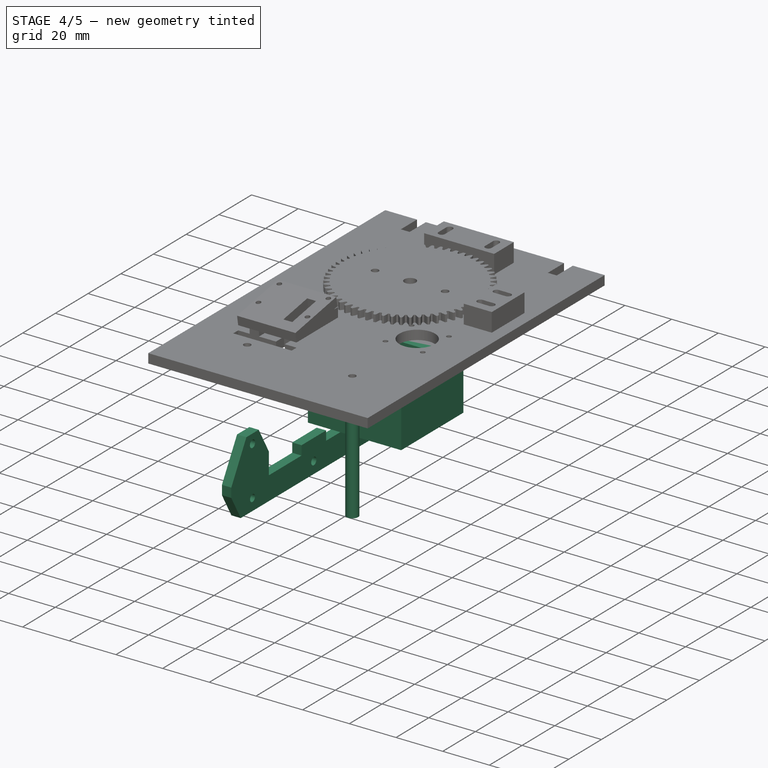
[diagram: stage 4 of 5 — iso view after this stage's code; geometry added in this stage tinted green]
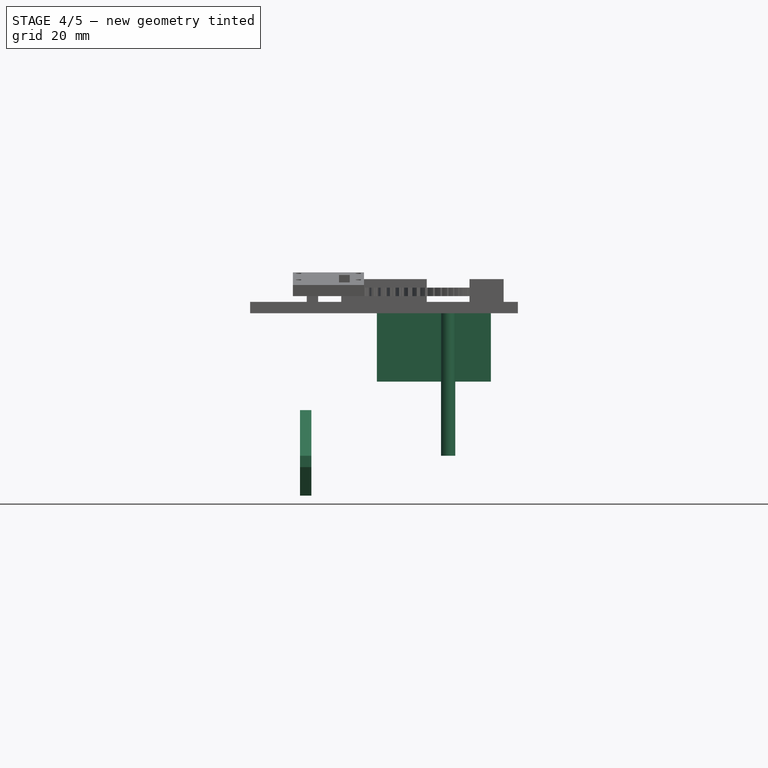
[diagram: stage 4 of 5 — front view after this stage's code; geometry added in this stage tinted green]
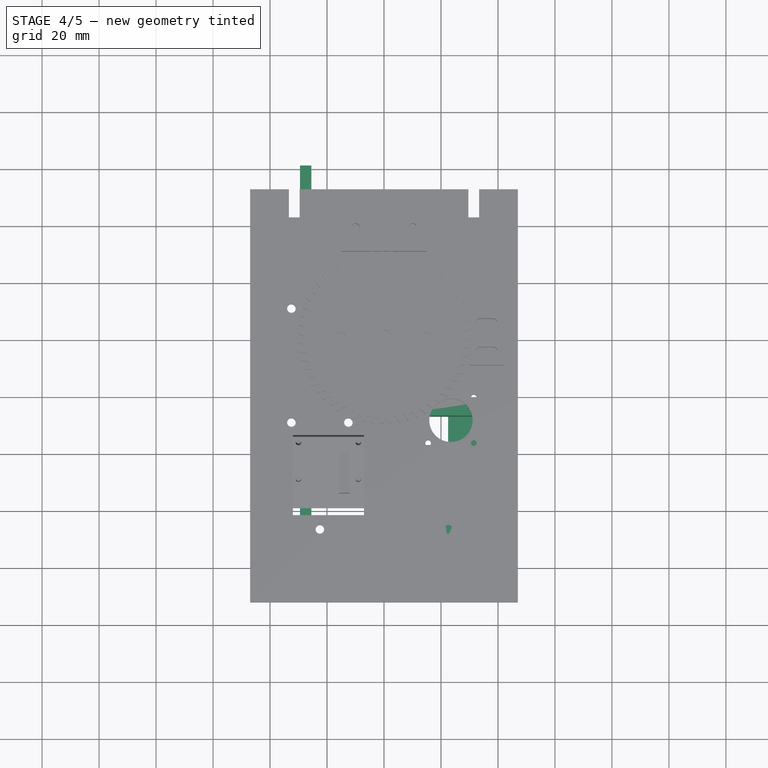
[diagram: stage 4 of 5 — top view after this stage's code; geometry added in this stage tinted green]
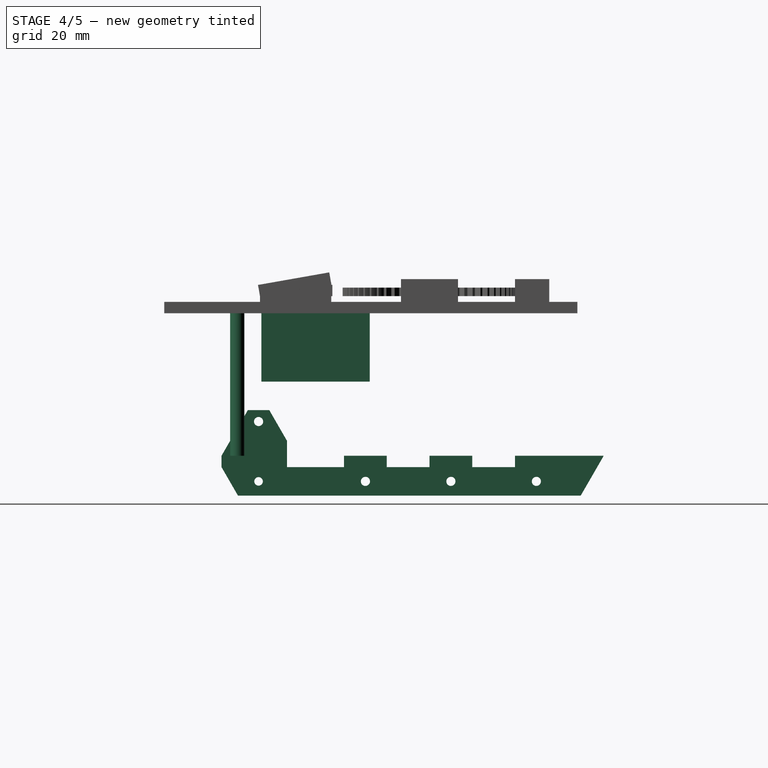
[diagram: stage 4 of 5 — right view after this stage's code; geometry added in this stage tinted green]
FEATURE [Sketcher::SketchObject] Sketch004  label="side"
  Placement = pos=(29.5,0,0) rot=(0.57735,0.57735,0.57735;2.0944rad)
  sketch-geometry (67):
    g0: Circle [constr] CenterX=75.5 CenterY=16 CenterZ=0 NormalX=0 NormalY=0 NormalZ=1 Radius=1.5
    g1: LineSegment StartX=-70.6906 StartY=8 StartZ=0 EndX=0 EndY=8 EndZ=0
    g2: LineSegment [constr] StartX=0 StartY=8 StartZ=0 EndX=31.1769 EndY=62 EndZ=0
    g3: LineSegment StartX=57.6795 StartY=62 StartZ=0 EndX=75 EndY=32 EndZ=0
    g4: LineSegment StartX=75 StartY=32 StartZ=0 EndX=75 EndY=28 EndZ=0
    g5: LineSegment StartX=25.2 StartY=31.9 StartZ=0 EndX=65 EndY=31.9 EndZ=0
    g6: LineSegment StartX=65 StartY=31.9 StartZ=0 EndX=65 EndY=28.1 EndZ=0
    g7: LineSegment StartX=65 StartY=28.1 StartZ=0 EndX=25.2 EndY=28.1 EndZ=0
    g8: LineSegment StartX=25.2 StartY=28.1 StartZ=0 EndX=25.2 EndY=31.9 EndZ=0
    g9: LineSegment StartX=-15 StartY=4 StartZ=0 EndX=0 EndY=4 EndZ=0
    g10: LineSegment StartX=0 StartY=4 StartZ=0 EndX=0 EndY=0 EndZ=0
    g11: LineSegment StartX=0 StartY=0 StartZ=0 EndX=-15 EndY=0 EndZ=0
    g12: LineSegment StartX=-15 StartY=0 StartZ=0 EndX=-15 EndY=4 EndZ=0
    g13: LineSegment StartX=-60 StartY=4 StartZ=0 EndX=-30 EndY=4 EndZ=0
    g14: LineSegment StartX=-30 StartY=4 StartZ=0 EndX=-30 EndY=0 EndZ=0
    g15: LineSegment StartX=-73 StartY=0 StartZ=0 EndX=-67.2265 EndY=-10 EndZ=0
    g16: LineSegment StartX=-73 StartY=4 StartZ=0 EndX=-73 EndY=0 EndZ=0
    g17: LineSegment [constr] StartX=-60 StartY=4 StartZ=0 EndX=-73 EndY=4 EndZ=0
    g18: LineSegment StartX=-73 StartY=4 StartZ=0 EndX=-70.6906 EndY=8 EndZ=0
    g19: LineSegment [constr] StartX=-73 StartY=0 StartZ=0 EndX=-60 EndY=0 EndZ=0
    g20: Circle CenterX=-60 CenterY=-5 CenterZ=0 NormalX=0 NormalY=0 NormalZ=1 Radius=1.5
    g21: LineSegment StartX=31.1769 StartY=62 StartZ=0 EndX=57.6795 EndY=62 EndZ=0
    g22: LineSegment StartX=28.8098 StartY=57.9 StartZ=0 EndX=42 EndY=57.9 EndZ=0
    g23: LineSegment StartX=42 StartY=57.9 StartZ=0 EndX=42 EndY=54.1 EndZ=0
    g24: LineSegment StartX=42 StartY=54.1 StartZ=0 EndX=26.6158 EndY=54.1 EndZ=0
    g25: LineSegment StartX=28.8098 StartY=57.9 StartZ=0 EndX=31.1769 EndY=62 EndZ=0
    g26: LineSegment StartX=0 StartY=8 StartZ=0 EndX=26.6158 EndY=54.1 EndZ=0
    g27: LineSegment [constr] StartX=-60 StartY=0 StartZ=0 EndX=-60 EndY=-5 EndZ=0
    g28: LineSegment StartX=15 StartY=4 StartZ=0 EndX=30 EndY=4 EndZ=0
    g29: LineSegment StartX=30 StartY=4 StartZ=0 EndX=30 EndY=0 EndZ=0
    g30: LineSegment StartX=15 StartY=0 StartZ=0 EndX=15 EndY=4 EndZ=0
    g31: LineSegment StartX=-67.2265 StartY=-10 StartZ=0 EndX=-53.4641 EndY=-10 EndZ=0
    g32: LineSegment StartX=-50 StartY=-4 StartZ=0 EndX=-53.4641 EndY=-10 EndZ=0
    g33: LineSegment [constr] StartX=-22.5 StartY=-5 StartZ=0 EndX=-22.5 EndY=0 EndZ=0
    g34: LineSegment StartX=-27.3094 StartY=-4 StartZ=0 EndX=-25 EndY=0 EndZ=0
    g35: LineSegment StartX=-25 StartY=0 StartZ=0 EndX=-20 EndY=0 EndZ=0
    g36: LineSegment StartX=-20 StartY=0 StartZ=0 EndX=-17.6906 EndY=-4 EndZ=0
    g37: LineSegment [constr] StartX=7.5 StartY=0 StartZ=0 EndX=7.5 EndY=-5 EndZ=0
    g38: LineSegment StartX=5 StartY=0 StartZ=0 EndX=10 EndY=0 EndZ=0
    g39: LineSegment StartX=5 StartY=0 StartZ=0 EndX=2.6906 EndY=-4 EndZ=0
    g40: LineSegment StartX=10 StartY=0 StartZ=0 EndX=12.3094 EndY=-4 EndZ=0
    g41: LineSegment [constr] StartX=37.5 StartY=0 StartZ=0 EndX=37.5 EndY=-5 EndZ=0
    g42: LineSegment StartX=35 StartY=0 StartZ=0 EndX=40 EndY=0 EndZ=0
    g43: LineSegment StartX=35 StartY=0 StartZ=0 EndX=32.6906 EndY=-4 EndZ=0
    g44: LineSegment StartX=40 StartY=0 StartZ=0 EndX=45.7735 EndY=-10 EndZ=0
    g45: LineSegment StartX=12.3094 StartY=-4 StartZ=0 EndX=32.6906 EndY=-4 EndZ=0
    g46: LineSegment StartX=75 StartY=28 StartZ=0 EndX=53.0607 EndY=-10 EndZ=0
    g47: LineSegment StartX=45.7735 StartY=-10 StartZ=0 EndX=53.0607 EndY=-10 EndZ=0
    g48: LineSegment StartX=-17.6906 StartY=-4 StartZ=0 EndX=2.6906 EndY=-4 EndZ=0
    g49: LineSegment StartX=-50 StartY=-4 StartZ=0 EndX=-27.3094 EndY=-4 EndZ=0
    g50: LineSegment [constr] StartX=2.6906 StartY=-4 StartZ=0 EndX=12.3094 EndY=-4 EndZ=0
    g51: LineSegment [constr] StartX=-27.3094 StartY=-4 StartZ=0 EndX=-17.6906 EndY=-4 EndZ=0
    g52: LineSegment [constr] StartX=-20 StartY=0 StartZ=0 EndX=5 EndY=0 EndZ=0
    g53: LineSegment [constr] StartX=-53.4641 StartY=-10 StartZ=0 EndX=45.7735 EndY=-10 EndZ=0
    g54: LineSegment [constr] StartX=-30 StartY=4 StartZ=0 EndX=-15 EndY=4 EndZ=0
    g55: LineSegment [constr] StartX=0 StartY=4 StartZ=0 EndX=15 EndY=4 EndZ=0
    g56: LineSegment [constr] StartX=-60 StartY=-5 StartZ=0 EndX=-22.5 EndY=-5 EndZ=0
    g57: LineSegment [constr] StartX=-22.5 StartY=-5 StartZ=0 EndX=7.5 EndY=-5 EndZ=0
    g58: LineSegment [constr] StartX=7.5 StartY=-5 StartZ=0 EndX=37.5 EndY=-5 EndZ=0
    g59: LineSegment [constr] StartX=37.5 StartY=-5 StartZ=0 EndX=49.5 EndY=-5 EndZ=0
    g60: Circle CenterX=49.5 CenterY=-5 CenterZ=0 NormalX=0 NormalY=0 NormalZ=1 Radius=1.5
    g61: LineSegment StartX=-60 StartY=0 StartZ=0 EndX=-50 EndY=0 EndZ=0
    g62: LineSegment StartX=-60 StartY=4 StartZ=0 EndX=-60 EndY=0 EndZ=0
    g63: LineSegment StartX=-50 StartY=0 StartZ=0 EndX=-30 EndY=0 EndZ=0
    g64: LineSegment StartX=15 StartY=0 StartZ=0 EndX=30 EndY=0 EndZ=0
    g65: LineSegment [constr] StartX=10 StartY=0 StartZ=0 EndX=15 EndY=0 EndZ=0
    g66: LineSegment [constr] StartX=30 StartY=0 StartZ=0 EndX=35 EndY=0 EndZ=0
  constraints (189):
    c: Radius(g0) = 1.5
    c: DistanceY(g-1,g0) = 16
    c: DistanceX(g-1,g0) = 75.5
    c: Horizontal(g1)
    c: Coincident(g1,g2)
    c: Distance(g-1,g1) = 8
    c: DistanceY(g-1,g3) = 62
    c: Vertical(g4)
    c: DistanceY(g4) = -4
    c: Coincident(g3,g4)
    c: DistanceX(g-1,g1) = 0
    c: DistanceY(g-1,g4) = 28
    c: Distance(g1,g4) = 75
    c: Angle(g2,g1) = 2.0944
    c: Coincident(g5,g6)
    c: Coincident(g7,g8)
    c: Coincident(g8,g5)
    c: Horizontal(g5)
    c: Horizontal(g7)
    c: Vertical(g6)
    c: Vertical(g8)
    c: Distance(g4,g6) = 10
    c: Distance(g5) = 39.8
    c: Distance(g8) = 3.8
    c: Coincident(g9,g10)
    c: Coincident(g10,g11)
    c: Coincident(g11,g12)
    c: Coincident(g12,g9)
    c: Horizontal(g9)
    c: Horizontal(g11)
    c: Vertical(g10)
    c: Vertical(g12)
    c: Coincident(g13,g14)
    c: Horizontal(g13)
    c: Vertical(g14)
    c: Distance(g9) = 15
    c: Distance(g10) = 4
    c: DistanceY(g-1,g11) = 0
    c: Distance(g14) = 4
    c: DistanceY(g-1,g14) = 0
    c: Coincident(g16,g15)
    c: Vertical(g16)
    c: Coincident(g17,g16)
    c: Horizontal(g17)
    c: Coincident(g18,g16)
    c: Coincident(g18,g1)
    c: Coincident(g19,g15)
    c: Horizontal(g19)
    c: Distance(g-1,g16) = 73
    c: Distance(g-1,g14) = 30
    c: DistanceY(g-1,g20) = -5
    c: Radius(g20) = 1.5
    c: Coincident(g21,g3)
    c: Horizontal(g21)
    c: PointOnObject(g2,g21)
    c: PointOnObject(g22,g2)
    c: Horizontal(g22)
    c: Coincident(g23,g22)
    c: Vertical(g23)
    c: Coincident(g24,g23)
    c: PointOnObject(g24,g2)
    c: Horizontal(g24)
    c: Distance(g22,g21) = 4.1
    c: Distance(g23) = 3.8
    c: Coincident(g25,g22)
    c: Coincident(g25,g2)
    c: Coincident(g26,g1)
    c: Coincident(g26,g24)
    c: Coincident(g2,g21)
    c: Distance(g13,g12) = 15
    c: DistanceX(g-1,g22) = 42
    c: Coincident(g27,g20)
    c: Vertical(g27)
    c: Coincident(g28,g29)
    c: Coincident(g30,g28)
    c: Horizontal(g28)
    c: Vertical(g29)
    c: Vertical(g30)
    c: Distance(g28) = 15
    c: Distance(g28,g10) = 15
    c: Distance(g30) = 4
    c: Coincident(g31,g15)
    c: Horizontal(g31)
    c: Vertical(g33)
    c: Coincident(g35,g34)
    c: Horizontal(g35)
    c: Symmetric(g34,g35,g33)
    c: Distance(g35) = 5
    c: Coincident(g35)
    c: Coincident(g36,g35)
    c: DistanceX(g-1,g33) = -22.5
    c: PointOnObject(g37,g-1)
    c: Vertical(g37)
    c: Horizontal(g38)
    c: Distance(g38) = 5
    c: Symmetric(g38,g38,g37)
    c: Coincident(g39,g38)
    c: Coincident(g40,g38)
    c: DistanceX(g33,g37) = 30
    c: PointOnObject(g41,g-1)
    c: Vertical(g41)
    c: DistanceX(g37,g41) = 30
    c: PointOnObject(g42,g-1)
    c: Horizontal(g42)
    c: Distance(g42) = 5
    c: Symmetric(g42,g42,g41)
    c: PointOnObject(g43,g-1)
    c: Coincident(g42,g43)
    c: Coincident(g44,g42)
    c: Coincident(g45,g40)
    c: Coincident(g45,g43)
    c: Parallel(g2,g18)
    c: Parallel(g43,g2)
    c: Parallel(g39,g2)
    c: Angle(g21,g3) = 2.0944
    c: Parallel(g3,g44)
    c: Parallel(g3,g40)
    c: Parallel(g36,g3)
    c: Parallel(g15,g3)
    c: Coincident(g47,g44)
    c: Horizontal(g47)
    c: Coincident(g48,g36)
    c: Coincident(g48,g39)
    c: Horizontal(g48)
    c: Coincident(g49,g32)
    c: Coincident(g49,g34)
    c: Horizontal(g49)
    c: Parallel(g32,g2)
    c: Parallel(g34,g2)
    c: Coincident(g50,g40)
    c: Horizontal(g50)
    c: Coincident(g51,g34)
    c: Coincident(g51,g36)
    c: Horizontal(g51)
    c: Coincident(g32,g31)
    c: Coincident(g52,g35)
    c: Coincident(g52,g38)
    c: Horizontal(g52)
    c: Coincident(g39,g50)
    c: DistanceX(g20,g32) = 10
    c: Distance(g15,g19) = 10
    c: Coincident(g53,g31)
    c: Coincident(g53,g44)
    c: Horizontal(g53)
    c: Coincident(g54,g13)
    c: Horizontal(g54)
    c: Coincident(g55,g9)
    c: Horizontal(g55)
    c: Coincident(g56,g20)
    c: Coincident(g56,g33)
    c: Horizontal(g56)
    c: Coincident(g57,g33)
    c: Coincident(g57,g37)
    c: Horizontal(g57)
    c: Coincident(g58,g37)
    c: Coincident(g58,g41)
    c: Coincident(g59,g41)
    c: Horizontal(g59)
    c: Radius(g60) = 1.5
    c: Distance(g59) = 12
    c: Coincident(g59,g60)
    c: Horizontal(g58)
    c: Horizontal(g45)
    c: Coincident(g62,g61)
    c: Horizontal(g61)
    c: Vertical(g62)
    c: Coincident(g61,g27)
    c: Coincident(g27,g19)
    c: Coincident(g63,g61)
    c: Coincident(g63,g14)
    c: Horizontal(g63)
    c: Coincident(g13,g17)
    c: Coincident(g13,g62)
    c: Distance(g13) = 30
    c: DistanceY(g14,g34) = -4
    c: Coincident(g64,g30)
    c: Coincident(g64,g29)
    c: Horizontal(g64)
    c: Coincident(g65,g38)
    c: Coincident(g65,g30)
    c: Horizontal(g65)
    c: Coincident(g66,g29)
    c: Coincident(g66,g42)
    c: Horizontal(g66)
    c: Coincident(g4,g46)
    c: Coincident(g46,g47)
    c: Coincident(g7,g6)
    c: DistanceY(g5,g3) = 0.1
    c: Angle(g4,g46) = 2.61799
FEATURE [Part::Cylinder] Cylinder001  label="piller2"
  Angle = 360
  Height = 50
  Placement = pos=(22.5,-67.5,4) rot=(0,0,1;0rad)
  Radius = 2.5
FEATURE [Sketcher::SketchObject] Sketch006  label="side_inner"
  Placement = pos=(25.5,0,0) rot=(0.57735,0.57735,0.57735;2.0944rad)
  sketch-geometry (34):
    g0: Circle CenterX=-22.5 CenterY=-5 CenterZ=0 NormalX=0 NormalY=0 NormalZ=1 Radius=1.6
    g1: Circle CenterX=7.5 CenterY=-5 CenterZ=0 NormalX=0 NormalY=0 NormalZ=1 Radius=1.6
    g2: Circle CenterX=37.5 CenterY=-5 CenterZ=0 NormalX=0 NormalY=0 NormalZ=1 Radius=1.6
    g3: LineSegment StartX=-67.2265 StartY=-10 StartZ=0 EndX=53.0607 EndY=-10 EndZ=0
    g4: LineSegment StartX=-73 StartY=0 StartZ=0 EndX=-67.2265 EndY=-10 EndZ=0
    g5: LineSegment StartX=-73 StartY=4 StartZ=0 EndX=-73 EndY=0 EndZ=0
    g6: LineSegment [constr] StartX=-30 StartY=4 StartZ=0 EndX=-73 EndY=4 EndZ=0
    g7: LineSegment StartX=-73 StartY=4 StartZ=0 EndX=-63.7624 EndY=20 EndZ=0
    g8: LineSegment [constr] StartX=-73 StartY=0 StartZ=0 EndX=-50 EndY=0 EndZ=0
    g9: Circle CenterX=-60 CenterY=-5 CenterZ=0 NormalX=0 NormalY=0 NormalZ=1 Radius=1.5
    g10: LineSegment [constr] StartX=-60 StartY=0 StartZ=0 EndX=-60 EndY=-5 EndZ=0
    g11: LineSegment StartX=-63.7624 StartY=20 StartZ=0 EndX=-56.2376 EndY=20 EndZ=0
    g12: LineSegment StartX=-56.2376 StartY=20 StartZ=0 EndX=-50 EndY=9.19615 EndZ=0
    g13: LineSegment StartX=-50 StartY=9.19615 StartZ=0 EndX=-50 EndY=0 EndZ=0
    g14: LineSegment StartX=-15 StartY=0 StartZ=0 EndX=-15 EndY=4 EndZ=0
    g15: LineSegment StartX=-15 StartY=4 StartZ=0 EndX=-30 EndY=4 EndZ=0
    g16: LineSegment StartX=-30 StartY=4 StartZ=0 EndX=-30 EndY=0 EndZ=0
    g17: LineSegment StartX=15 StartY=0 StartZ=0 EndX=15 EndY=4 EndZ=0
    g18: LineSegment StartX=15 StartY=4 StartZ=0 EndX=0 EndY=4 EndZ=0
    g19: LineSegment StartX=0 StartY=4 StartZ=0 EndX=0 EndY=0 EndZ=0
    g20: LineSegment StartX=61.1436 StartY=4 StartZ=0 EndX=30 EndY=4 EndZ=0
    g21: LineSegment StartX=30 StartY=4 StartZ=0 EndX=30 EndY=0 EndZ=0
    g22: LineSegment [constr] StartX=-15 StartY=4 StartZ=0 EndX=0 EndY=4 EndZ=0
    g23: LineSegment [constr] StartX=15 StartY=4 StartZ=0 EndX=30 EndY=4 EndZ=0
    g24: LineSegment StartX=-50 StartY=0 StartZ=0 EndX=-30 EndY=0 EndZ=0
    g25: LineSegment StartX=-15 StartY=0 StartZ=0 EndX=0 EndY=0 EndZ=0
    g26: LineSegment StartX=15 StartY=0 StartZ=0 EndX=30 EndY=0 EndZ=0
    g27: LineSegment [constr] StartX=0 StartY=0 StartZ=0 EndX=15 EndY=0 EndZ=0
    g28: LineSegment [constr] StartX=30 StartY=0 StartZ=0 EndX=50 EndY=0 EndZ=0
    g29: Circle CenterX=-60 CenterY=16 CenterZ=0 NormalX=0 NormalY=0 NormalZ=1 Radius=1.6
    g30: LineSegment [constr] StartX=-60 StartY=16 StartZ=0 EndX=-60 EndY=0 EndZ=0
    g31: GeomPoint [constr] X=75 Y=28 Z=0
    g32: LineSegment [constr] StartX=75 StartY=28 StartZ=0 EndX=53.0607 EndY=-10 EndZ=0
    g33: LineSegment StartX=61.1436 StartY=4 StartZ=0 EndX=53.0607 EndY=-10 EndZ=0
  constraints (92):
    c: Radius(g0) = 1.6
    c: Radius(g1) = 1.6
    c: Radius(g2) = 1.6
    c: DistanceX(g-1,g0) = -22.5
    c: DistanceX(g0,g1) = 30
    c: DistanceY(g-1,g0) = -5
    c: Horizontal(g3)
    c: Distance(g1,g3) = 5
    c: DistanceX(g1,g2) = 30
    c: Distance(g2,g3) = 5
    c: Distance(g-1,g3) = 10
    c: Coincident(g5,g4)
    c: Vertical(g5)
    c: Coincident(g6,g5)
    c: Horizontal(g6)
    c: Coincident(g7,g5)
    c: Coincident(g8,g4)
    c: Horizontal(g8)
    c: Coincident(g4,g3)
    c: Distance(g-1,g5) = 73
    c: DistanceY(g-1,g9) = -5
    c: Radius(g9) = 1.5
    c: Coincident(g10,g9)
    c: Vertical(g10)
    c: DistanceY(g5) = -4
    c: Coincident(g11,g7)
    c: Horizontal(g11)
    c: Coincident(g13,g12)
    c: Vertical(g13)
    c: Coincident(g14,g15)
    c: Coincident(g15,g16)
    c: Horizontal(g15)
    c: Vertical(g14)
    c: Vertical(g16)
    c: PointOnObject(g16,g-1)
    c: Coincident(g17,g18)
    c: Coincident(g18,g19)
    c: Horizontal(g18)
    c: Vertical(g17)
    c: Vertical(g19)
    c: Coincident(g20,g21)
    c: Horizontal(g20)
    c: Vertical(g21)
    c: Coincident(g22,g18)
    c: Horizontal(g22)
    c: Coincident(g23,g17)
    c: Coincident(g23,g20)
    c: Horizontal(g23)
    c: Horizontal(g24)
    c: Coincident(g25,g14)
    c: Coincident(g25,g19)
    c: Horizontal(g25)
    c: Coincident(g26,g17)
    c: Coincident(g26,g21)
    c: Horizontal(g26)
    c: DistanceX(g0,g14) = 7.5
    c: Distance(g15) = 15
    c: Coincident(g22,g14)
    c: Distance(g18) = 15
    c: DistanceX(g1,g17) = 7.5
    c: Coincident(g16,g24)
    c: Coincident(g6,g15)
    c: Coincident(g27,g19)
    c: Coincident(g27,g17)
    c: Horizontal(g27)
    c: Coincident(g28,g21)
    c: Horizontal(g28)
    c: Coincident(g11,g12)
    c: Angle(g11,g12) = 2.0944
    c: Coincident(g24,g13)
    c: Angle(g6,g7) = 1.0472
    c: Angle(g4,g8) = 1.0472
    c: Distance(g10,g13) = 10
    c: DistanceX(g-1,g9) = -60
    c: Symmetric(g11,g7,g10)
    c: Coincident(g30,g29)
    c: Coincident(g30,g10)
    c: Vertical(g30)
    c: Distance(g30) = 16
    c: PointOnObject(g10,g8)
    c: Radius(g29) = 1.6
    c: Distance(g29,g11) = 4
    c: DistanceX(g-2,g31) = 75
    c: DistanceY(g-1,g31) = 28
    c: Coincident(g32,g31)
    c: Angle(g32,g-1) = 2.0944
    c: Coincident(g3,g32)
    c: PointOnObject(g33,g32)
    c: Coincident(g8,g13)
    c: Coincident(g33,g3)
    c: Distance(g23) = 15
    c: Coincident(g33,g20)
FEATURE [Part::Extrusion] Extrude011
  Base = -> Sketch006
  Dir = (4,0,0)
  Solid = true
FEATURE [Sketcher::SketchObject] Sketch007  label="minimotor_braket_bottom"
  Placement = pos=(0,0,30) rot=(0,0,1;0rad)
  sketch-geometry (15):
    g0: GeomPoint [constr] X=12.5 Y=-32.5 Z=0
    g1: LineSegment StartX=-2.5 StartY=-21 StartZ=0 EndX=37.5 EndY=-21 EndZ=0
    g2: LineSegment StartX=37.5 StartY=-21 StartZ=0 EndX=37.5 EndY=-59 EndZ=0
    g3: LineSegment StartX=37.5 StartY=-59 StartZ=0 EndX=-2.5 EndY=-59 EndZ=0
    g4: LineSegment StartX=-2.5 StartY=-59 StartZ=0 EndX=-2.5 EndY=-21 EndZ=0
    g5: LineSegment StartX=22.5 StartY=-27.5 StartZ=0 EndX=22.5 EndY=-37.5 EndZ=0
    g6: LineSegment StartX=2.5 StartY=-27.5 StartZ=0 EndX=22.5 EndY=-27.5 EndZ=0
    g7: LineSegment StartX=22.5 StartY=-27.5 StartZ=0 EndX=22.5 EndY=-37.5 EndZ=0
    g8: LineSegment StartX=22.5 StartY=-37.5 StartZ=0 EndX=2.5 EndY=-37.5 EndZ=0
    g9: LineSegment StartX=2.5 StartY=-37.5 StartZ=0 EndX=2.5 EndY=-27.5 EndZ=0
    g10: LineSegment [constr] StartX=22.5 StartY=-27.5 StartZ=0 EndX=37.5 EndY=-27.5 EndZ=0
    g11: LineSegment StartX=22.5 StartY=-27.5 StartZ=0 EndX=22.5 EndY=-37.5 EndZ=0
    g12: Circle CenterX=2.5 CenterY=-56 CenterZ=0 NormalX=0 NormalY=0 NormalZ=1 Radius=1.5
    g13: Circle CenterX=32.5 CenterY=-24 CenterZ=0 NormalX=0 NormalY=0 NormalZ=1 Radius=1.5
    g14: LineSegment [constr] StartX=2.5 StartY=-37.5 StartZ=0 EndX=2.5 EndY=-56 EndZ=0
  constraints (41):
    c: DistanceY(g-1,g0) = -32.5
    c: DistanceX(g-1,g0) = 12.5
    c: Coincident(g1,g2)
    c: Coincident(g2,g3)
    c: Coincident(g3,g4)
    c: Coincident(g4,g1)
    c: Horizontal(g1)
    c: Horizontal(g3)
    c: Vertical(g2)
    c: Vertical(g4)
    c: Distance(g6,g4) = 5
    c: Vertical(g5)
    c: Distance(g5) = 10
    c: Coincident(g6,g7)
    c: Coincident(g7,g8)
    c: Coincident(g8,g9)
    c: Coincident(g9,g6)
    c: Horizontal(g6)
    c: Horizontal(g8)
    c: Vertical(g7)
    c: Vertical(g9)
    c: Coincident(g7,g5)
    c: Coincident(g10,g5)
    c: Horizontal(g10)
    c: Distance(g1,g6) = 6.5
    c: Distance(g5,g2) = 15
    c: Distance(g5,g1) = 6.5
    c: Distance(g0,g4) = 15
    c: Coincident(g11,g5)
    c: Coincident(g11,g5)
    c: Distance(g13,g1) = 3
    c: DistanceX(g0,g13) = 20
    c: Radius(g13) = 1.5
    c: DistanceX(g8) = -20
    c: Distance(g12,g3) = 3
    c: Radius(g12) = 1.5
    c: Coincident(g14,g8)
    c: Coincident(g14,g12)
    c: Vertical(g14)
    c: Distance(g4) = 38
    c: Distance(g-1,g1) = 21
FEATURE [Sketcher::SketchObject] Sketch008  label="minimotor_braket"
  sketch-geometry (13):
    g0: LineSegment StartX=2.5 StartY=-27.5 StartZ=0 EndX=32.5 EndY=-27.5 EndZ=0
    g1: LineSegment StartX=32.5 StartY=-27.5 StartZ=0 EndX=32.5 EndY=-51.5 EndZ=0
    g2: LineSegment StartX=32.5 StartY=-51.5 StartZ=0 EndX=2.5 EndY=-51.5 EndZ=0
    g3: LineSegment StartX=2.5 StartY=-51.5 StartZ=0 EndX=2.5 EndY=-27.5 EndZ=0
    g4: GeomPoint [constr] X=12.5 Y=-32.5 Z=0
    g5: LineSegment StartX=-2.5 StartY=-21 StartZ=0 EndX=37.5 EndY=-21 EndZ=0
    g6: LineSegment StartX=37.5 StartY=-21 StartZ=0 EndX=37.5 EndY=-59 EndZ=0
    g7: LineSegment StartX=37.5 StartY=-59 StartZ=0 EndX=-2.5 EndY=-59 EndZ=0
    g8: LineSegment StartX=-2.5 StartY=-59 StartZ=0 EndX=-2.5 EndY=-21 EndZ=0
    g9: Circle CenterX=32.5 CenterY=-24 CenterZ=0 NormalX=0 NormalY=0 NormalZ=1 Radius=1.5
    g10: LineSegment [constr] StartX=32.5 StartY=-24 StartZ=0 EndX=32.5 EndY=-27.5 EndZ=0
    g11: Circle CenterX=2.5 CenterY=-56 CenterZ=0 NormalX=0 NormalY=0 NormalZ=1 Radius=1.5
    g12: LineSegment [constr] StartX=2.5 StartY=-51.5 StartZ=0 EndX=2.5 EndY=-56 EndZ=0
  constraints (36):
    c: Coincident(g0,g1)
    c: Coincident(g1,g2)
    c: Coincident(g2,g3)
    c: Coincident(g3,g0)
    c: Horizontal(g0)
    c: Horizontal(g2)
    c: Vertical(g1)
    c: Vertical(g3)
    c: DistanceY(g-1,g4) = -32.5
    c: DistanceX(g-1,g4) = 12.5
    c: Distance(g1) = 24
    c: Distance(g0) = 30
    c: Distance(g4,g1) = 20
    c: Distance(g4,g0) = 5
    c: Coincident(g5,g6)
    c: Coincident(g6,g7)
    c: Coincident(g7,g8)
    c: Coincident(g8,g5)
    c: Horizontal(g5)
    c: Horizontal(g7)
    c: Vertical(g6)
    c: Vertical(g8)
    c: Distance(g0,g6) = 5
    c: Distance(g0,g8) = 5
    c: DistanceY(g0,g5) = 6.5
    c: Radius(g9) = 1.5
    c: Distance(g9,g5) = 3
    c: Coincident(g10,g9)
    c: Coincident(g10,g0)
    c: Vertical(g10)
    c: Radius(g11) = 1.5
    c: Distance(g11,g7) = 3
    c: Coincident(g12,g2)
    c: Vertical(g12)
    c: Coincident(g12,g11)
    c: Distance(g8) = 38
FEATURE [Part::Extrusion] Extrude
  Base = -> Sketch007
  Dir = (0,0,4)
  Solid = true
FEATURE [Part::Extrusion] Extrude012
  Base = -> Sketch008
  Dir = (0,0,20)
  Placement = pos=(0,0,34) rot=(0,0,1;0rad)
  Solid = true
FEATURE [Part::Mirroring] Part__Mirroring005  label="Extrude011 (Mirror #6)"
  Base = (0,0,0)
  Normal = (1,0,0)
  Source = -> Extrude011
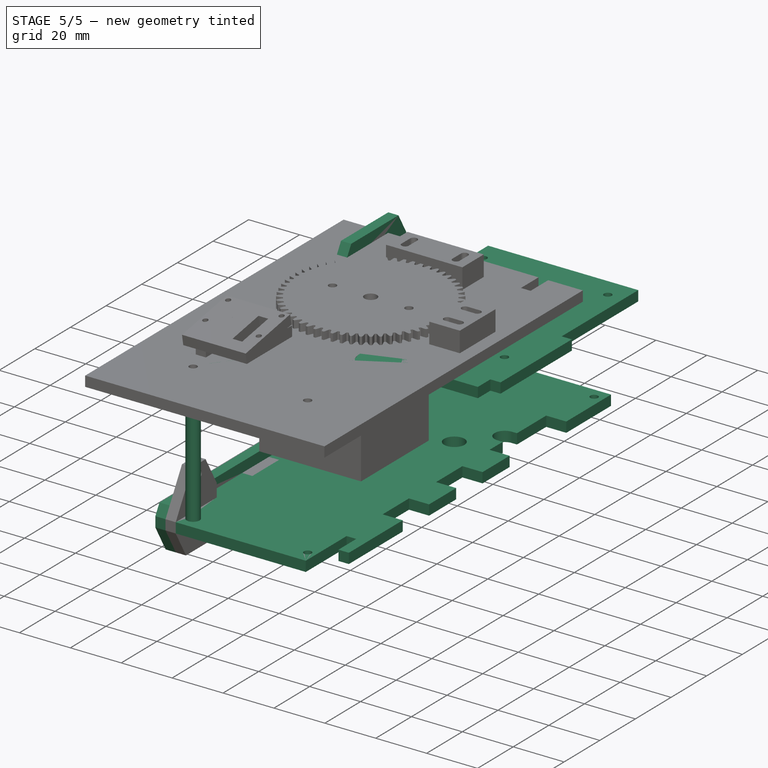
[diagram: stage 5 of 5 — iso view after this stage's code; geometry added in this stage tinted green]
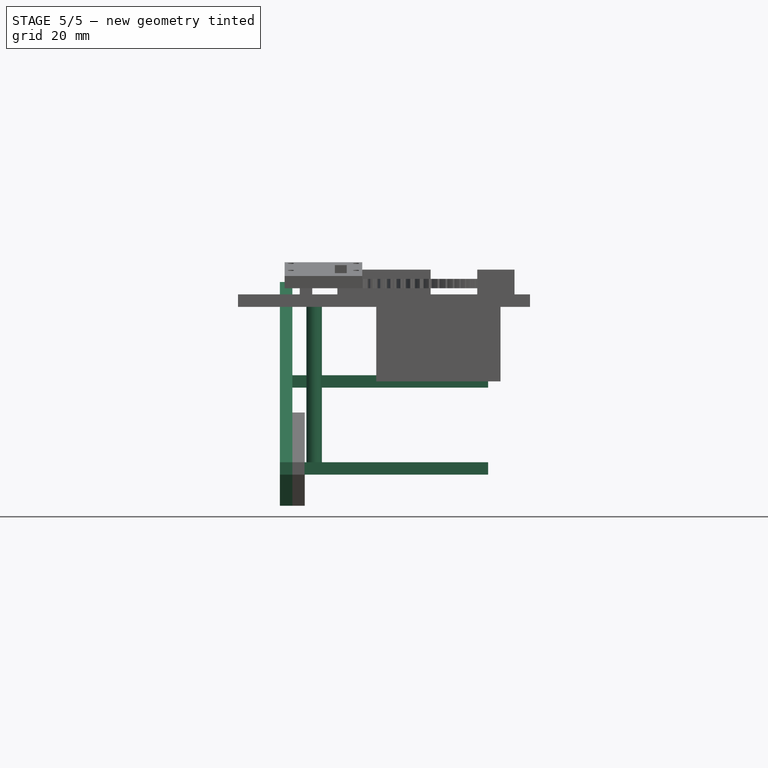
[diagram: stage 5 of 5 — front view after this stage's code; geometry added in this stage tinted green]
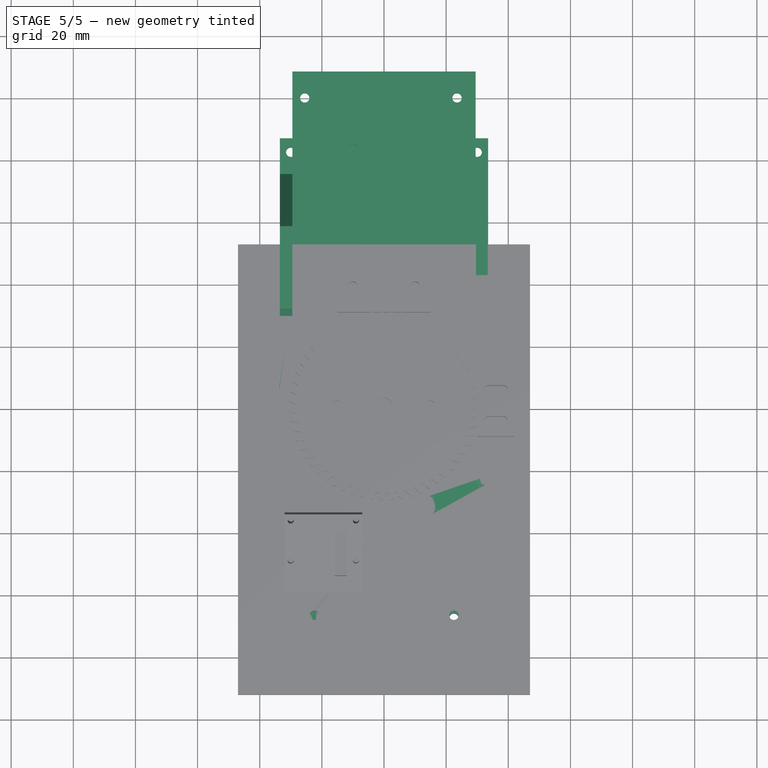
[diagram: stage 5 of 5 — top view after this stage's code; geometry added in this stage tinted green]
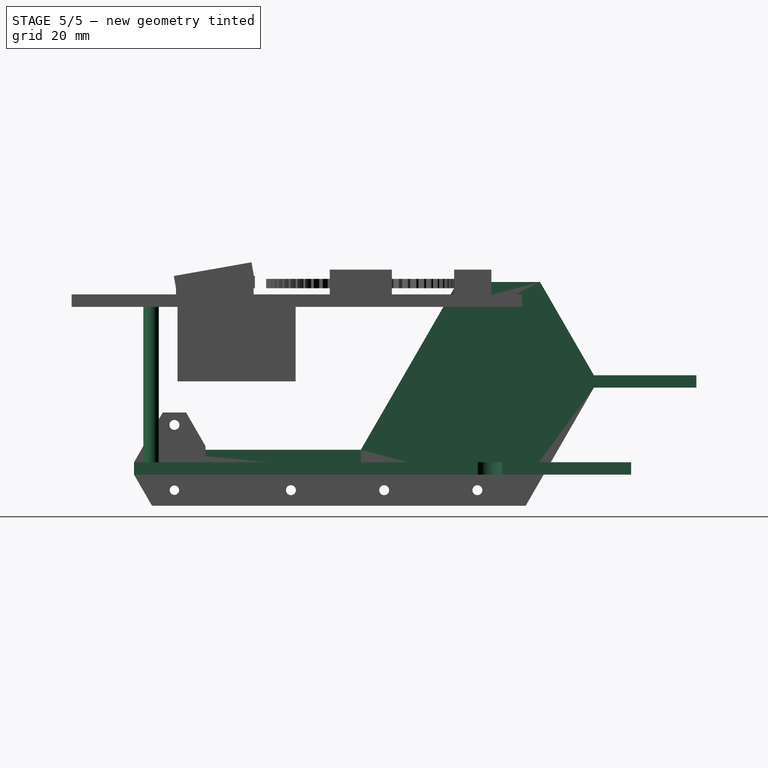
[diagram: stage 5 of 5 — right view after this stage's code; geometry added in this stage tinted green]
FEATURE [Sketcher::SketchObject] Sketch  label="rpi-base"
  Placement = pos=(0,0,28) rot=(0,0,1;0rad)
  sketch-geometry (36):
    g0: Circle CenterX=-25.5 CenterY=99.5 CenterZ=0 NormalX=0 NormalY=0 NormalZ=1 Radius=1.5
    g1: Circle [constr] CenterX=23.5 CenterY=99.5 CenterZ=0 NormalX=0 NormalY=0 NormalZ=1 Radius=0
    g2: Circle CenterX=23.5 CenterY=41.5 CenterZ=0 NormalX=0 NormalY=0 NormalZ=1 Radius=1.5
    g3: Circle CenterX=-25.5 CenterY=41.5 CenterZ=0 NormalX=0 NormalY=0 NormalZ=1 Radius=1.5
    g4: LineSegment [constr] StartX=-4.05 StartY=33 StartZ=0 EndX=9.2 EndY=33 EndZ=0
    g5: LineSegment [constr] StartX=9.2 StartY=33 StartZ=0 EndX=9.2 EndY=16 EndZ=0
    g6: LineSegment [constr] StartX=9.2 StartY=16 StartZ=0 EndX=-4.05 EndY=16 EndZ=0
    g7: LineSegment [constr] StartX=-4.05 StartY=16 StartZ=0 EndX=-4.05 EndY=33 EndZ=0
    g8: Circle CenterX=15.4 CenterY=28.6 CenterZ=0 NormalX=0 NormalY=0 NormalZ=1 Radius=1.5
    g9: Circle CenterX=-10 CenterY=83.2 CenterZ=0 NormalX=0 NormalY=0 NormalZ=1 Radius=1.5
    g10: LineSegment StartX=-29.5 StartY=18 StartZ=0 EndX=29.5 EndY=18 EndZ=0
    g11: LineSegment StartX=29.5 StartY=108 StartZ=0 EndX=-29.5 EndY=108 EndZ=0
    g12: LineSegment StartX=33.5 StartY=65 StartZ=0 EndX=33.5 EndY=25 EndZ=0
    g13: LineSegment StartX=-29.5 StartY=25 StartZ=0 EndX=-33.5 EndY=25 EndZ=0
    g14: LineSegment StartX=-33.5 StartY=65 StartZ=0 EndX=-33.5 EndY=25 EndZ=0
    g15: LineSegment StartX=-29.5 StartY=25 StartZ=0 EndX=-29.5 EndY=18 EndZ=0
    g16: LineSegment [constr] StartX=-29.5 StartY=65 StartZ=0 EndX=-29.5 EndY=25 EndZ=0
    g17: LineSegment [constr] StartX=29.5 StartY=65 StartZ=0 EndX=29.5 EndY=25 EndZ=0
    g18: LineSegment StartX=29.5 StartY=25 StartZ=0 EndX=33.5 EndY=25 EndZ=0
    g19: LineSegment StartX=29.5 StartY=25 StartZ=0 EndX=29.5 EndY=18 EndZ=0
    g20: LineSegment StartX=29.5 StartY=65 StartZ=0 EndX=33.5 EndY=65 EndZ=0
    g21: LineSegment StartX=-33.5 StartY=65 StartZ=0 EndX=-29.5 EndY=65 EndZ=0
    g22: LineSegment [constr] StartX=-25.5 StartY=99.5 StartZ=0 EndX=23.5 EndY=99.5 EndZ=0
    g23: LineSegment [constr] StartX=23.5 StartY=99.5 StartZ=0 EndX=23.5 EndY=41.5 EndZ=0
    g24: Circle CenterX=23.5 CenterY=99.5 CenterZ=0 NormalX=0 NormalY=0 NormalZ=1 Radius=1.5
    g25: LineSegment [constr] StartX=-1 StartY=170 StartZ=0 EndX=-1 EndY=120 EndZ=0
    g26: LineSegment [constr] StartX=-27.8592 StartY=55 StartZ=0 EndX=27.1383 EndY=55 EndZ=0
    g27: LineSegment [constr] StartX=27.1383 StartY=55 StartZ=0 EndX=27.1383 EndY=53 EndZ=0
    g28: LineSegment [constr] StartX=27.1383 StartY=53 StartZ=0 EndX=-27.8592 EndY=53 EndZ=0
    g29: LineSegment [constr] StartX=-27.8592 StartY=53 StartZ=0 EndX=-27.8592 EndY=55 EndZ=0
    g30: LineSegment StartX=-29.5 StartY=108 StartZ=0 EndX=-29.5 EndY=65 EndZ=0
    g31: LineSegment StartX=29.5 StartY=108 StartZ=0 EndX=29.5 EndY=65 EndZ=0
    g32: LineSegment [constr] StartX=28 StartY=108.7 StartZ=0 EndX=28 EndY=23.7 EndZ=0
    g33: LineSegment [constr] StartX=28 StartY=23.7 StartZ=0 EndX=-28 EndY=23.7 EndZ=0
    g34: LineSegment [constr] StartX=-28 StartY=23.7 StartZ=0 EndX=-28 EndY=108.7 EndZ=0
    g35: LineSegment [constr] StartX=-28 StartY=108.7 StartZ=0 EndX=0 EndY=108.7 EndZ=0
  constraints (95):
    c: Radius(g0) = 1.5
    c: Radius(g2) = 1.5
    c: Radius(g3) = 1.5
    c: Coincident(g4,g5)
    c: Coincident(g5,g6)
    c: Coincident(g6,g7)
    c: Coincident(g7,g4)
    c: Horizontal(g4)
    c: Horizontal(g6)
    c: Vertical(g5)
    c: Vertical(g7)
    c: DistanceX(g4) = 13.25
    c: Radius(g8) = 1.5
    c: Radius(g9) = 1.5
    c: Distance(g0,g1) = 49
    c: Horizontal(g11)
    c: DistanceY(g-1,g10) = 18
    c: Vertical(g12)
    c: Horizontal(g13)
    c: Coincident(g14,g13)
    c: Coincident(g15,g10)
    c: Vertical(g15)
    c: Vertical(g16)
    c: DistanceX(g-1,g10) = 29.5
    c: Distance(g14) = 40
    c: Symmetric(g13,g12,g-2)
    c: DistanceY(g-1,g11) = 108
    c: Vertical(g17)
    c: Coincident(g18,g17)
    c: Coincident(g18,g12)
    c: Coincident(g19,g17)
    c: Coincident(g19,g10)
    c: Vertical(g19)
    c: Coincident(g20,g12)
    c: DistanceX(g20) = 4
    c: Symmetric(g10,g10,g-2)
    c: Symmetric(g14,g12,g-2)
    c: Coincident(g21,g14)
    c: Horizontal(g21)
    c: Coincident(g22,g0)
    c: Coincident(g22,g1)
    c: Horizontal(g22)
    c: Coincident(g16,g13)
    c: Coincident(g16,g21)
    c: Symmetric(g21,g17,g-2)
    c: Coincident(g16,g15)
    c: Coincident(g23,g1)
    c: Coincident(g23,g2)
    c: Vertical(g23)
    c: Symmetric(g13,g17,g-2)
    c: Coincident(g24,g1)
    c: Radius(g24) = 1.5
    c: Distance(g8,g5) = 6.2
    c: DistanceY(g9,g8) = -54.6
    c: DistanceX(g9,g8) = 25.4
    c: DistanceY(g23) = -58
    c: Distance(g3,g6) = 25.5
    c: Vertical(g25)
    c: Symmetric(g3,g2,g25)
    c: Distance(g25) = 50
    c: DistanceY(g25) = 170
    c: Distance(g8,g6) = 12.6
    c: Distance(g5,g10) = 2
    c: DistanceY(g-1,g13) = 25
    c: Coincident(g26,g27)
    c: Coincident(g27,g28)
    c: Coincident(g28,g29)
    c: Coincident(g29,g26)
    c: Horizontal(g26)
    c: Horizontal(g28)
    c: Vertical(g27)
    c: Vertical(g29)
    c: Distance(g10,g28) = 35
    c: Coincident(g30,g11)
    c: Coincident(g30,g16)
    c: Vertical(g30)
    c: Coincident(g31,g11)
    c: Coincident(g31,g17)
    c: Vertical(g31)
    c: Distance(g27) = 2
    c: Vertical(g32)
    c: Distance(g8,g32) = 12.6
    c: Coincident(g33,g32)
    c: Horizontal(g33)
    c: Distance(g33) = 56
    c: Coincident(g34,g33)
    c: Vertical(g34)
    c: Distance(g34) = 85
    c: Distance(g8,g33) = 4.9
    c: Coincident(g20,g17)
    c: Symmetric(g0,g1,g25)
    c: Symmetric(g33,g32,g-2)
    c: Coincident(g35,g34)
    c: Horizontal(g35)
    c: Distance(g35) = 28
FEATURE [Sketcher::SketchObject] Sketch001  label="base"
  sketch-geometry (56):
    g0: LineSegment StartX=-33.5 StartY=87 StartZ=0 EndX=33.5 EndY=87 EndZ=0
    g1: Circle CenterX=-30 CenterY=82.5 CenterZ=0 NormalX=0 NormalY=0 NormalZ=1 Radius=1.5
    g2: Circle CenterX=30 CenterY=82.5 CenterZ=0 NormalX=0 NormalY=0 NormalZ=1 Radius=1.5
    g3: LineSegment StartX=-33.5 StartY=-60.1 StartZ=0 EndX=-33.5 EndY=-29.9 EndZ=0
    g4: Circle CenterX=-22.5 CenterY=-67.5 CenterZ=0 NormalX=0 NormalY=0 NormalZ=1 Radius=1.5
    g5: Circle CenterX=22.5 CenterY=-67.5 CenterZ=0 NormalX=0 NormalY=0 NormalZ=1 Radius=1.5
    g6: LineSegment StartX=33.5 StartY=-29.9 StartZ=0 EndX=33.5 EndY=-60.1 EndZ=0
    g7: LineSegment StartX=-25.6 StartY=-50.1 StartZ=0 EndX=-25.6 EndY=-73 EndZ=0
    g8: LineSegment StartX=-25.6 StartY=-73 StartZ=0 EndX=25.6 EndY=-73 EndZ=0
    g9: LineSegment StartX=25.6 StartY=-29.9 StartZ=0 EndX=33.5 EndY=-29.9 EndZ=0
    g10: LineSegment StartX=33.5 StartY=87 StartZ=0 EndX=33.5 EndY=61.9 EndZ=0
    g11: Circle CenterX=12.825 CenterY=28.6 CenterZ=0 NormalX=0 NormalY=0 NormalZ=1 Radius=4
    g12: LineSegment StartX=29.4 StartY=-60.1 StartZ=0 EndX=33.5 EndY=-60.1 EndZ=0
    g13: LineSegment StartX=-29.4 StartY=-60.1 StartZ=0 EndX=-33.5 EndY=-60.1 EndZ=0
    g14: LineSegment StartX=25.6 StartY=-50.1 StartZ=0 EndX=29.4 EndY=-50.1 EndZ=0
    g15: LineSegment StartX=29.4 StartY=-50.1 StartZ=0 EndX=29.4 EndY=-60.1 EndZ=0
    g16: LineSegment StartX=25.6 StartY=-73 StartZ=0 EndX=25.6 EndY=-50.1 EndZ=0
    g17: LineSegment StartX=-29.4 StartY=-60.1 StartZ=0 EndX=-29.4 EndY=-50.1 EndZ=0
    g18: LineSegment StartX=-29.4 StartY=-50.1 StartZ=0 EndX=-25.6 EndY=-50.1 EndZ=0
    g19: LineSegment StartX=25.6 StartY=0.1 StartZ=0 EndX=33.5 EndY=0.1 EndZ=0
    g20: LineSegment StartX=33.5 StartY=0.1 StartZ=0 EndX=33.5 EndY=-15.1 EndZ=0
    g21: LineSegment StartX=33.5 StartY=-15.1 StartZ=0 EndX=25.6 EndY=-15.1 EndZ=0
    g22: LineSegment StartX=25.6 StartY=14.9 StartZ=0 EndX=25.6 EndY=0.1 EndZ=0
    g23: LineSegment StartX=25.6 StartY=-15.1 StartZ=0 EndX=25.6 EndY=-29.9 EndZ=0
    g24: LineSegment StartX=25.6 StartY=14.9 StartZ=0 EndX=33.5 EndY=14.9 EndZ=0
    g25: LineSegment StartX=33.5 StartY=14.9 StartZ=0 EndX=33.5 EndY=30.1 EndZ=0
    g26: LineSegment StartX=33.5 StartY=30.1 StartZ=0 EndX=25.6 EndY=30.1 EndZ=0
    g27: LineSegment StartX=33.5 StartY=61.9 StartZ=0 EndX=25.6 EndY=61.9 EndZ=0
    g28: LineSegment [constr] StartX=25.6 StartY=30.1 StartZ=0 EndX=25.6 EndY=14.9 EndZ=0
    g29: LineSegment [constr] StartX=25.6 StartY=0.1 StartZ=0 EndX=25.6 EndY=-15.1 EndZ=0
    g30: LineSegment [constr] StartX=25.6 StartY=-29.9 StartZ=0 EndX=25.6 EndY=-50.1 EndZ=0
    g31: LineSegment [constr] StartX=33.5 StartY=14.9 StartZ=0 EndX=33.5 EndY=0.1 EndZ=0
    g32: LineSegment [constr] StartX=33.5 StartY=-15.1 StartZ=0 EndX=33.5 EndY=-29.9 EndZ=0
    g33: LineSegment [constr] StartX=33.5 StartY=30.1 StartZ=0 EndX=33.5 EndY=61.9 EndZ=0
    g34: LineSegment StartX=-33.5 StartY=-29.9 StartZ=0 EndX=-25.6 EndY=-29.9 EndZ=0
    g35: LineSegment StartX=-25.6 StartY=-29.9 StartZ=0 EndX=-25.6 EndY=-15.1 EndZ=0
    g36: LineSegment StartX=-25.6 StartY=-15.1 StartZ=0 EndX=-33.5 EndY=-15.1 EndZ=0
    g37: LineSegment StartX=-25.6 StartY=0.1 StartZ=0 EndX=-25.6 EndY=14.9 EndZ=0
    g38: LineSegment StartX=-25.6 StartY=14.9 StartZ=0 EndX=-33.5 EndY=14.9 EndZ=0
    g39: LineSegment StartX=-33.5 StartY=61.9 StartZ=0 EndX=-25.6 EndY=61.9 EndZ=0
    g40: LineSegment StartX=-25.6 StartY=30.1 StartZ=0 EndX=-33.5 EndY=30.1 EndZ=0
    g41: LineSegment StartX=-33.5 StartY=87 StartZ=0 EndX=-33.5 EndY=61.9 EndZ=0
    g42: LineSegment StartX=-33.5 StartY=30.1 StartZ=0 EndX=-33.5 EndY=14.9 EndZ=0
    g43: LineSegment StartX=-25.6 StartY=0.1 StartZ=0 EndX=-33.5 EndY=0.1 EndZ=0
    g44: LineSegment StartX=-33.5 StartY=0.1 StartZ=0 EndX=-33.5 EndY=-15.1 EndZ=0
    g45: ArcOfCircle CenterX=-23.6 CenterY=41.5 CenterZ=0 NormalX=0 NormalY=0 NormalZ=1 Radius=4 StartAngle=4.71239 EndAngle=7.85398
    g46: LineSegment StartX=-23.6 StartY=45.5 StartZ=0 EndX=-25.6 EndY=45.5 EndZ=0
    g47: LineSegment StartX=-23.6 StartY=37.5 StartZ=0 EndX=-25.6 EndY=37.5 EndZ=0
    g48: LineSegment StartX=-25.6 StartY=61.9 StartZ=0 EndX=-25.6 EndY=45.5 EndZ=0
    g49: LineSegment StartX=-25.6 StartY=30.1 StartZ=0 EndX=-25.6 EndY=37.5 EndZ=0
    g50: LineSegment [constr] StartX=-25.6 StartY=45.5 StartZ=0 EndX=-25.6 EndY=37.5 EndZ=0
    g51: ArcOfCircle CenterX=23.6 CenterY=41.5 CenterZ=0 NormalX=0 NormalY=0 NormalZ=1 Radius=4 StartAngle=1.5708 EndAngle=4.71239
    g52: LineSegment StartX=23.6 StartY=37.5 StartZ=0 EndX=25.6 EndY=37.5 EndZ=0
    g53: LineSegment StartX=23.6 StartY=45.5 StartZ=0 EndX=25.6 EndY=45.5 EndZ=0
    g54: LineSegment StartX=25.6 StartY=30.1 StartZ=0 EndX=25.6 EndY=37.5 EndZ=0
    g55: LineSegment StartX=25.6 StartY=61.9 StartZ=0 EndX=25.6 EndY=45.5 EndZ=0
  constraints (151):
    c: Radius(g2) = 1.5
    c: Distance(g1,g0) = 4.5
    c: DistanceY(g-1,g0) = 87
    c: Vertical(g3)
    c: DistanceX(g-2,g1) = -30
    c: Radius(g4) = 1.5
    c: Radius(g5) = 1.5
    c: Vertical(g7)
    c: Coincident(g8,g7)
    c: Coincident(g9,g6)
    c: DistanceY(g1,g4) = -150
    c: DistanceY(g8,g0) = 160
    c: Distance(g6) = 30.2
    c: Coincident(g10,g0)
    c: DistanceY(g10) = -25.1
    c: DistanceX(g4,g5) = 45
    c: Vertical(g6)
    c: Symmetric(g3,g6,g-2)
    c: Symmetric(g0,g0,g-2)
    c: Symmetric(g7,g8,g-2)
    c: Symmetric(g4,g5,g-2)
    c: DistanceY(g11) = 28.6
    c: DistanceX(g-1,g11) = 12.825
    c: Radius(g11) = 4
    c: Horizontal(g12)
    c: Coincident(g6,g12)
    c: Coincident(g13,g3)
    c: Coincident(g14,g15)
    c: Coincident(g16,g14)
    c: Horizontal(g14)
    c: Vertical(g15)
    c: Vertical(g16)
    c: Coincident(g15,g12)
    c: Coincident(g16,g8)
    c: Distance(g14) = 3.8
    c: Distance(g15) = 10
    c: Coincident(g17,g13)
    c: Vertical(g17)
    c: Coincident(g18,g17)
    c: Coincident(g18,g7)
    c: Symmetric(g7,g14,g-2)
    c: Symmetric(g17,g14,g-2)
    c: Symmetric(g13,g12,g-2)
    c: DistanceY(g-1,g6) = -60.1
    c: Coincident(g19,g20)
    c: Coincident(g20,g21)
    c: Horizontal(g19)
    c: Horizontal(g21)
    c: Vertical(g20)
    c: Coincident(g22,g19)
    c: Vertical(g22)
    c: Coincident(g23,g21)
    c: Coincident(g23,g9)
    c: Vertical(g23)
    c: Distance(g23) = 14.8
    c: Distance(g20) = 15.2
    c: Distance(g22) = 14.8
    c: Coincident(g24,g22)
    c: Horizontal(g24)
    c: Coincident(g25,g24)
    c: Vertical(g25)
    c: Distance(g25) = 15.2
    c: Coincident(g26,g25)
    c: Horizontal(g26)
    c: Coincident(g27,g10)
    c: Horizontal(g27)
    c: Coincident(g28,g26)
    c: Coincident(g28,g22)
    c: Coincident(g29,g19)
    c: Coincident(g29,g21)
    c: Coincident(g30,g9)
    c: Coincident(g30,g14)
    c: Coincident(g31,g24)
    c: Coincident(g31,g19)
    c: Vertical(g31)
    c: Coincident(g32,g20)
    c: Coincident(g32,g6)
    c: Vertical(g32)
    c: Coincident(g33,g25)
    c: Coincident(g33,g10)
    c: Vertical(g33)
    c: Vertical(g10)
    c: DistanceX(g12) = 4.1
    c: Symmetric(g1,g2,g-2)
    c: Vertical(g30)
    c: Distance(g5,g16) = 3.1
    c: Vertical(g29)
    c: Vertical(g28)
    c: Coincident(g34,g35)
    c: Coincident(g35,g36)
    c: Horizontal(g34)
    c: Horizontal(g36)
    c: Vertical(g35)
    c: Coincident(g34,g3)
    c: Coincident(g37,g38)
    c: Horizontal(g38)
    c: Vertical(g37)
    c: Horizontal(g39)
    c: Horizontal(g40)
    c: Coincident(g41,g0)
    c: Coincident(g41,g39)
    c: Symmetric(g39,g10,g-2)
    c: Symmetric(g40,g26,g-2)
    c: Coincident(g42,g40)
    c: Coincident(g42,g38)
    c: Vertical(g42)
    c: Symmetric(g37,g22,g-2)
    c: Coincident(g43,g37)
    c: Horizontal(g43)
    c: Horizontal(g9)
    c: Symmetric(g19,g43,g-2)
    c: Symmetric(g35,g21,g-2)
    c: Symmetric(g3,g6,g-2)
    c: Coincident(g44,g43)
    c: Coincident(g44,g36)
    c: Vertical(g44)
    c: Symmetric(g40,g25,g-2)
    c: Radius(g1) = 1.5
    c: Tangent(g45,g46)
    c: Tangent(g45,g47)
    c: Coincident(g45,g47)
    c: Coincident(g45,g46)
    c: Horizontal(g46)
    c: DistanceY(g45,g45) = 8
    c: DistanceY(g-1,g45) = 41.5
    c: Coincident(g48,g39)
    c: Coincident(g48,g46)
    c: Vertical(g48)
    c: Horizontal(g47)
    c: Coincident(g49,g40)
    c: Vertical(g49)
    c: Coincident(g49,g47)
    c: Vertical(g50)
    c: Coincident(g50,g46)
    c: Coincident(g50,g47)
    c: Distance(g45,g50) = 2
    c: Tangent(g51,g52)
    c: Tangent(g51,g53)
    c: Coincident(g51,g53)
    c: Coincident(g51,g52)
    c: Horizontal(g52)
    c: Horizontal(g53)
    c: Coincident(g54,g26)
    c: Vertical(g54)
    c: Coincident(g54,g52)
    c: Coincident(g55,g27)
    c: Vertical(g55)
    c: Coincident(g55,g53)
    c: Symmetric(g46,g53,g-2)
    c: Symmetric(g47,g52,g-2)
    c: Symmetric(g51,g45,g-2)
FEATURE [Sketcher::SketchObject] Sketch002  label="top"
  Placement = pos=(0,0,54) rot=(0,0,1;0rad)
  sketch-geometry (44):
    g0: LineSegment StartX=47 StartY=51.9 StartZ=0 EndX=47 EndY=-93.1 EndZ=0
    g1: LineSegment StartX=47 StartY=-93.1 StartZ=0 EndX=-47 EndY=-93.1 EndZ=0
    g2: LineSegment StartX=-47 StartY=-93.1 StartZ=0 EndX=-47 EndY=51.9 EndZ=0
    g3: Circle [constr] CenterX=0 CenterY=0 CenterZ=0 NormalX=0 NormalY=0 NormalZ=1 Radius=30
    g4: LineSegment StartX=-10 StartY=30 StartZ=0 EndX=10 EndY=30 EndZ=0
    g5: LineSegment StartX=10 StartY=30 StartZ=0 EndX=10 EndY=-15 EndZ=0
    g6: LineSegment StartX=10 StartY=-15 StartZ=0 EndX=-10 EndY=-15 EndZ=0
    g7: LineSegment StartX=-10 StartY=-15 StartZ=0 EndX=-10 EndY=30 EndZ=0
    g8: Circle [constr] CenterX=12.5 CenterY=-32.5 CenterZ=0 NormalX=0 NormalY=0 NormalZ=1 Radius=4.82097
    g9: Circle CenterX=22.5 CenterY=-67.5 CenterZ=0 NormalX=0 NormalY=0 NormalZ=1 Radius=1.5
    g10: Circle CenterX=-22.5 CenterY=-67.5 CenterZ=0 NormalX=0 NormalY=0 NormalZ=1 Radius=1.5
    g11: LineSegment [constr] StartX=-32.5 StartY=22.5 StartZ=0 EndX=-12.5 EndY=22.5 EndZ=0
    g12: LineSegment [constr] StartX=-12.5 StartY=22.5 StartZ=0 EndX=-12.5 EndY=-17.5 EndZ=0
    g13: LineSegment [constr] StartX=-12.5 StartY=-17.5 StartZ=0 EndX=-32.5 EndY=-17.5 EndZ=0
    g14: LineSegment [constr] StartX=-32.5 StartY=-17.5 StartZ=0 EndX=-32.5 EndY=22.5 EndZ=0
    g15: Circle CenterX=-32.5 CenterY=22.5 CenterZ=0 NormalX=0 NormalY=0 NormalZ=1 Radius=1.5
    g16: Circle [constr] CenterX=-12.5 CenterY=22.5 CenterZ=0 NormalX=0 NormalY=0 NormalZ=1 Radius=1.5
    g17: Circle CenterX=-32.5 CenterY=-17.5 CenterZ=0 NormalX=0 NormalY=0 NormalZ=1 Radius=1.5
    g18: Circle CenterX=-12.5 CenterY=-17.5 CenterZ=0 NormalX=0 NormalY=0 NormalZ=1 Radius=1.5
    g19: LineSegment StartX=33.4 StartY=42 StartZ=0 EndX=33.4 EndY=51.9 EndZ=0
    g20: LineSegment StartX=33.4 StartY=51.9 StartZ=0 EndX=47 EndY=51.9 EndZ=0
    g21: LineSegment StartX=-33.4 StartY=51.9 StartZ=0 EndX=-33.4 EndY=42 EndZ=0
    g22: LineSegment StartX=-33.4 StartY=42 StartZ=0 EndX=-29.6 EndY=42 EndZ=0
    g23: LineSegment StartX=-29.6 StartY=42 StartZ=0 EndX=-29.6 EndY=51.9 EndZ=0
    g24: LineSegment [constr] StartX=33.4 StartY=51.9 StartZ=0 EndX=29.6 EndY=51.9 EndZ=0
    g25: LineSegment StartX=29.6 StartY=51.9 StartZ=0 EndX=29.6 EndY=42 EndZ=0
    g26: LineSegment StartX=29.6 StartY=42 StartZ=0 EndX=33.4 EndY=42 EndZ=0
    g27: LineSegment StartX=-47 StartY=51.9 StartZ=0 EndX=-33.4 EndY=51.9 EndZ=0
    g28: LineSegment StartX=-29.6 StartY=51.9 StartZ=0 EndX=29.6 EndY=51.9 EndZ=0
    g29: LineSegment [constr] StartX=-33.4 StartY=51.9 StartZ=0 EndX=-29.6 EndY=51.9 EndZ=0
    g30: Circle [constr] CenterX=12.5 CenterY=-32.5 CenterZ=0 NormalX=0 NormalY=0 NormalZ=1 Radius=1.5
    g31: Circle CenterX=32.5 CenterY=-24 CenterZ=0 NormalX=0 NormalY=0 NormalZ=1 Radius=1.5
    g32: Circle CenterX=2.5 CenterY=-56 CenterZ=0 NormalX=0 NormalY=0 NormalZ=1 Radius=1.5
    g33: Circle CenterX=-10 CenterY=35 CenterZ=0 NormalX=0 NormalY=0 NormalZ=1 Radius=1.4
    g34: Circle CenterX=10 CenterY=35 CenterZ=0 NormalX=0 NormalY=0 NormalZ=1 Radius=1.4
    g35: LineSegment [constr] StartX=-30 StartY=0 StartZ=0 EndX=-30 EndY=-5 EndZ=0
    g36: Circle CenterX=-35 CenterY=-5 CenterZ=0 NormalX=0 NormalY=0 NormalZ=1 Radius=1.4
    g37: Circle CenterX=-35 CenterY=5 CenterZ=0 NormalX=0 NormalY=0 NormalZ=1 Radius=1.4
    g38: Circle CenterX=35 CenterY=5 CenterZ=0 NormalX=0 NormalY=0 NormalZ=1 Radius=1.4
    g39: Circle CenterX=35 CenterY=-5 CenterZ=0 NormalX=0 NormalY=0 NormalZ=1 Radius=1.4
    g40: ArcOfCircle CenterX=6.5 CenterY=-32.5 CenterZ=0 NormalX=0 NormalY=0 NormalZ=1 Radius=4 StartAngle=1.5708 EndAngle=4.71239
    g41: ArcOfCircle CenterX=12.5 CenterY=-32.5 CenterZ=0 NormalX=0 NormalY=0 NormalZ=1 Radius=4 StartAngle=4.71239 EndAngle=7.85398
    g42: LineSegment StartX=6.5 StartY=-36.5 StartZ=0 EndX=12.5 EndY=-36.5 EndZ=0
    g43: LineSegment StartX=6.5 StartY=-28.5 StartZ=0 EndX=12.5 EndY=-28.5 EndZ=0
  constraints (121):
    c: Coincident(g0,g1)
    c: Coincident(g1,g2)
    c: Horizontal(g1)
    c: Vertical(g0)
    c: Vertical(g2)
    c: Distance(g0) = 145
    c: DistanceX(g-1,g1) = -47
    c: Radius(g3) = 30
    c: Distance(g3,g0) = 47
    c: DistanceY(g-1,g3) = 0
    c: Coincident(g4,g5)
    c: Coincident(g5,g6)
    c: Coincident(g6,g7)
    c: Coincident(g7,g4)
    c: Horizontal(g4)
    c: Horizontal(g6)
    c: Vertical(g5)
    c: Vertical(g7)
    c: Distance(g4) = 20
    c: Distance(g5) = 45
    c: DistanceX(g-1,g4) = 10
    c: Tangent(g3,g4)
    c: Tangent(g8,g3)
    c: DistanceX(g8,g5) = -2.5
    c: DistanceY(g-1,g10) = -67.5
    c: DistanceX(g-2,g10) = -22.5
    c: Radius(g9) = 1.5
    c: Radius(g10) = 1.5
    c: Symmetric(g10,g9,g-2)
    c: Coincident(g11,g12)
    c: Coincident(g12,g13)
    c: Coincident(g13,g14)
    c: Coincident(g14,g11)
    c: Horizontal(g11)
    c: Horizontal(g13)
    c: Vertical(g12)
    c: Vertical(g14)
    c: Distance(g13) = 20
    c: Distance(g12) = 40
    c: Coincident(g15,g11)
    c: Coincident(g16,g11)
    c: Coincident(g17,g13)
    c: Coincident(g18,g12)
    c: Radius(g17) = 1.5
    c: Radius(g15) = 1.5
    c: Radius(g16) = 1.5
    c: Radius(g18) = 1.5
    c: DistanceX(g-1,g13) = -32.5
    c: Vertical(g19)
    c: Coincident(g20,g19)
    c: Horizontal(g20)
    c: Coincident(g21,g22)
    c: Coincident(g22,g23)
    c: Horizontal(g22)
    c: Vertical(g21)
    c: Vertical(g23)
    c: Distance(g2,g0) = 94
    c: Coincident(g20,g0)
    c: Coincident(g24,g19)
    c: Horizontal(g24)
    c: Distance(g24) = 3.8
    c: Coincident(g26,g25)
    c: Coincident(g26,g19)
    c: Horizontal(g26)
    c: Vertical(g25)
    c: Symmetric(g25,g22,g-2)
    c: Symmetric(g19,g21,g-2)
    c: DistanceX(g-2,g24) = 29.6
    c: Coincident(g27,g2)
    c: Horizontal(g27)
    c: Coincident(g28,g23)
    c: Horizontal(g28)
    c: Coincident(g28,g25)
    c: Coincident(g24,g25)
    c: Coincident(g27,g21)
    c: DistanceY(g-1,g25) = 42
    c: Coincident(g29,g21)
    c: Coincident(g29,g23)
    c: Horizontal(g29)
    c: Distance(g23) = 9.9
    c: Coincident(g30,g8)
    c: Radius(g30) = 1.5
    c: DistanceY(g8,g32) = -23.5
    c: DistanceX(g32,g8) = 10
    c: DistanceY(g8,g31) = 8.5
    c: DistanceX(g8,g31) = 20
    c: Radius(g31) = 1.5
    c: Radius(g32) = 1.5
    c: Radius(g33) = 1.4
    c: Symmetric(g34,g33,g-2)
    c: Radius(g34) = 1.4
    c: DistanceX(g-1,g33) = -10
    c: Distance(g33,g4) = 5
    c: PointOnObject(g35,g-1)
    c: Vertical(g35)
    c: PointOnObject(g35,g3)
    c: Distance(g35) = 5
    c: DistanceY(g13,g10) = -50
    c: Radius(g36) = 1.4
    c: Radius(g37) = 1.4
    c: Symmetric(g37,g38,g-2)
    c: Radius(g39) = 1.4
    c: Radius(g38) = 1.4
    c: Symmetric(g37,g36,g-1)
    c: Distance(g36,g35) = 5
    c: Symmetric(g36,g39,g-2)
    c: Distance(g37,g36) = 10
    c: Tangent(g40,g42)
    c: Tangent(g40,g43)
    c: Tangent(g41,g42)
    c: Tangent(g41,g43)
    c: Coincident(g40,g43)
    c: Coincident(g40,g42)
    c: Coincident(g42,g41)
    c: Coincident(g43,g41)
    c: Horizontal(g42)
    c: Equal(g40,g41)
    c: Coincident(g8,g41)
    c: DistanceY(g12,g8) = -15
    c: DistanceY(g40,g40) = 8
    c: Distance(g42) = 6
FEATURE [Part::Extrusion] Extrude005
  Base = -> Sketch001
  Dir = (0,0,4)
  Solid = true
FEATURE [Part::Extrusion] Extrude007
  Base = -> Sketch004
  Dir = (4,0,0)
  Solid = true
FEATURE [Part::Extrusion] Extrude009
  Base = -> Sketch002
  Dir = (0,0,4)
  Solid = true
FEATURE [Part::Extrusion] Extrude010
  Base = -> Sketch
  Dir = (0,0,4)
  Solid = true
FEATURE [Part::Mirroring] Part__Mirroring  label="Extrude007 (Mirror #1)"
  Base = (7.62939e-06,1,26)
  Normal = (1,0,-4.76837e-07)
  Source = -> Extrude007
FEATURE [Part::Mirroring] Part__Mirroring001  label="piller2 (Mirror #2)"
  Base = (5.72205e-06,-67.5,29)
  Normal = (1,0,-3.57628e-07)
  Source = -> Cylinder001
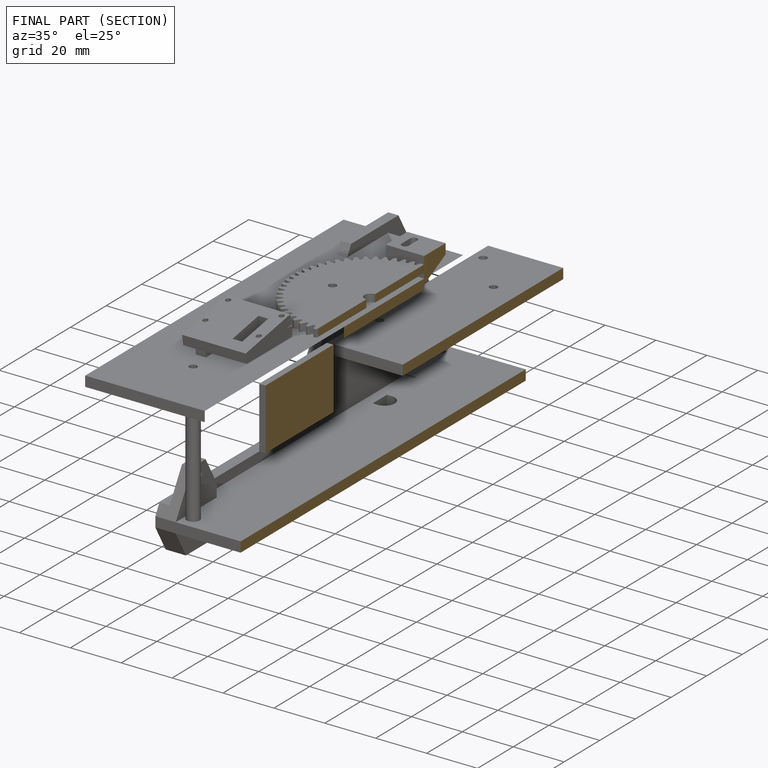
[diagram: finished part — half-section view (interior)]
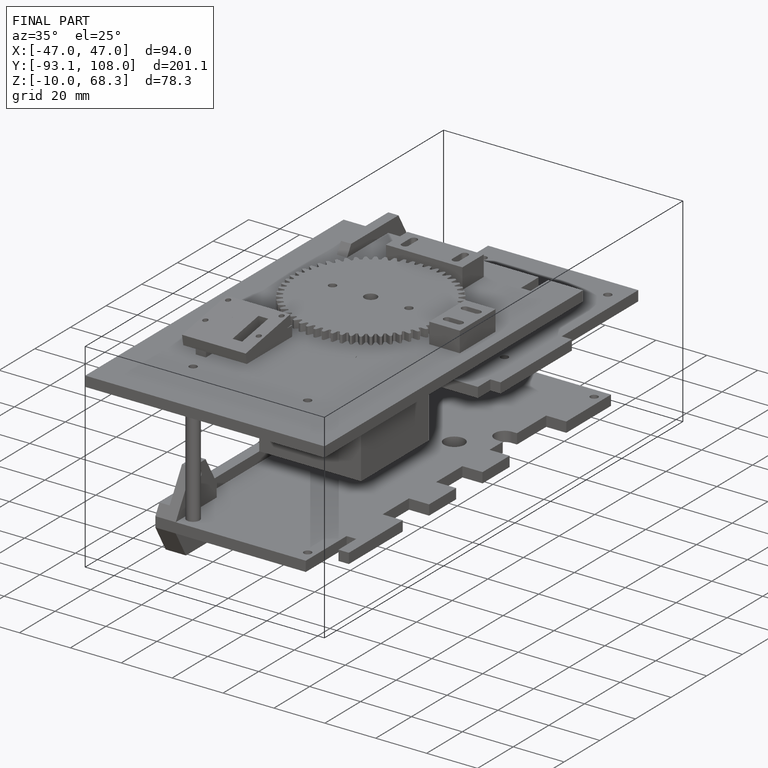
[diagram: finished part — iso view with bounding-box wireframe]
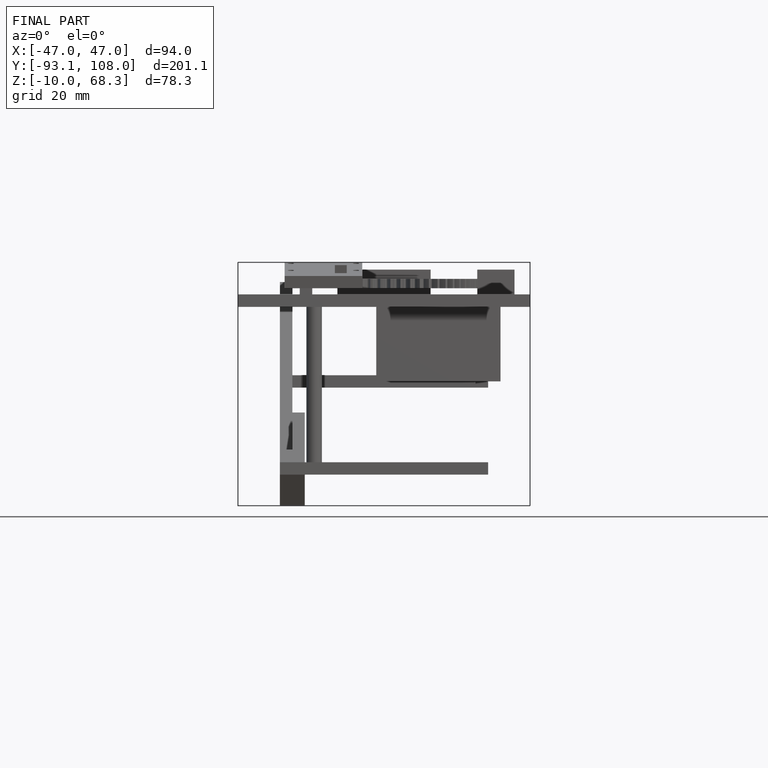
[diagram: finished part — front view with bounding-box wireframe]
